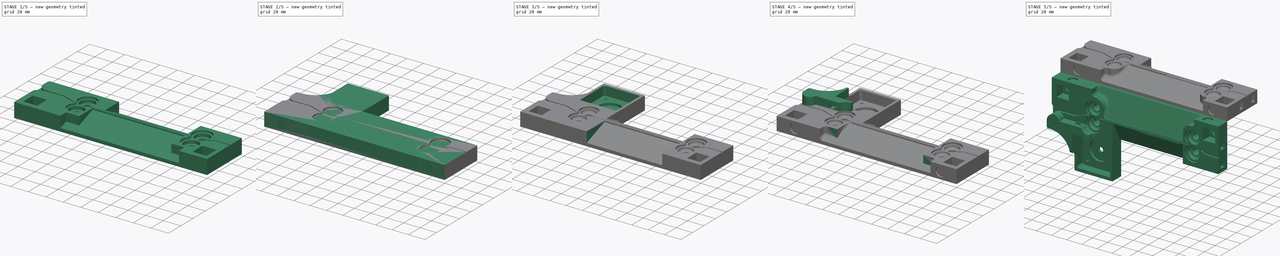
[diagram: build sequence overview — one tinted view per stage of 5, left to right]
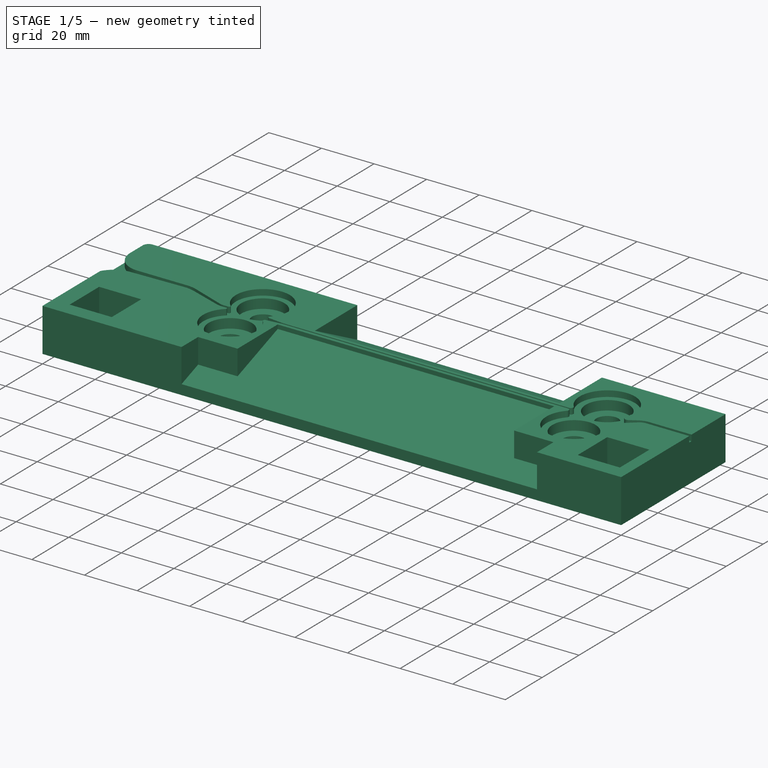
[diagram: stage 1 of 5 — iso view after this stage's code; geometry added in this stage tinted green]
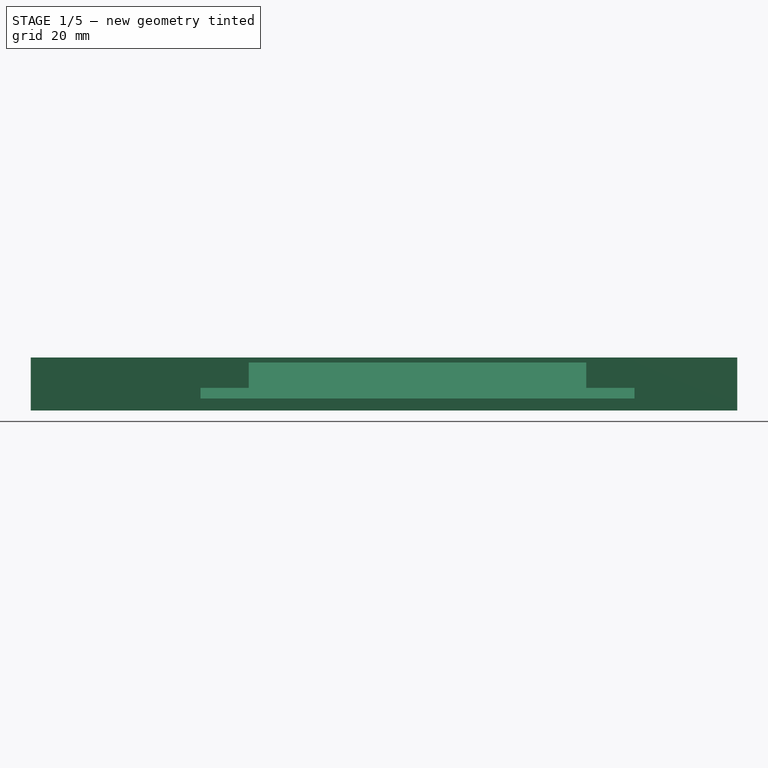
[diagram: stage 1 of 5 — front view after this stage's code; geometry added in this stage tinted green]
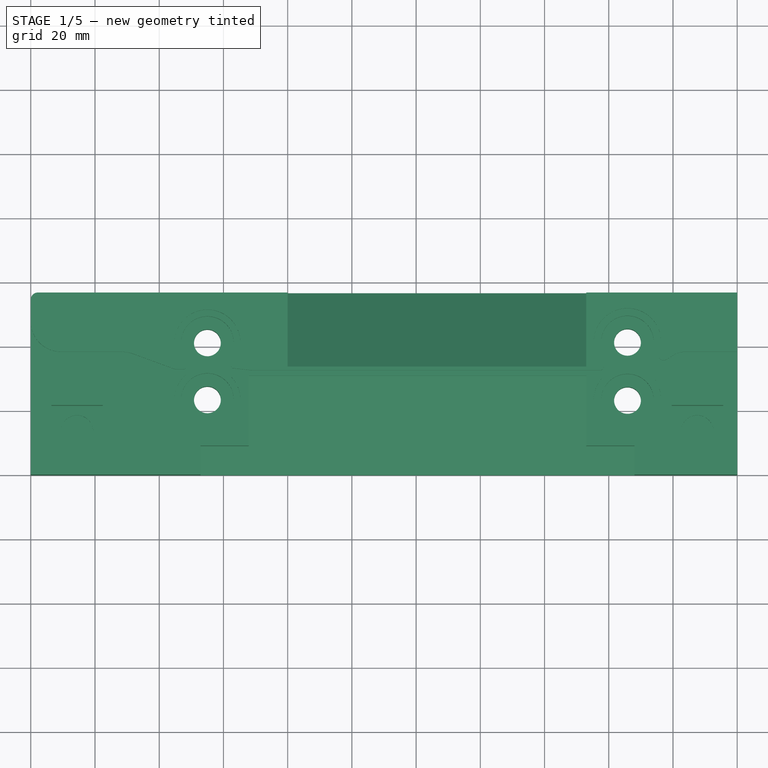
[diagram: stage 1 of 5 — top view after this stage's code; geometry added in this stage tinted green]
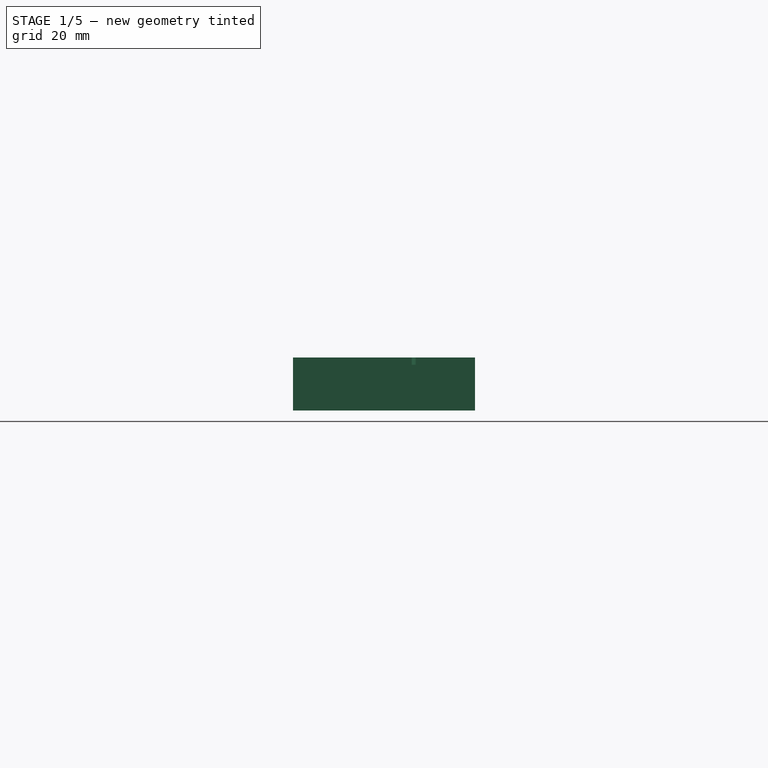
[diagram: stage 1 of 5 — right view after this stage's code; geometry added in this stage tinted green]
FCSTD DOCUMENT  (FreeCAD 0.19R22670 (Git))
Label: DuckAfterDuck OPEN Film Carrier
License: All rights reserved
LicenseURL: http://en.wikipedia.org/wiki/All_rights_reserved
objects: Sketcher::SketchObject×38, PartDesign::Pocket×36, PartDesign::Fillet×13, PartDesign::Pad×3, Spreadsheet::Sheet×2, PartDesign::Body×2, Part::Part2DObjectPython×1, PartDesign::Chamfer×1, Part::Mirroring×1
note: 148 computed .brp shape members not serialized (recipe doc carries the construction recipe); baked Part::Feature solids carry a one-line shape summary decoded from their .brp

FEATURE [Sketcher::SketchObject] Sketch034  label="bottomangularcutB"
  AttachmentOffset = pos=(0,0,-52) rot=(0,0,1;0rad)
  MapMode = 5
  Placement = pos=(173,0,0) rot=(0.57735,0.57735,0.57735;2.0944rad)
  sketch-geometry (4):
    g0: LineSegment StartX=0 StartY=16.6409 StartZ=0 EndX=0 EndY=3.75 EndZ=0
    g1: LineSegment StartX=0 StartY=3.75 StartZ=0 EndX=30.8 EndY=14.9603 EndZ=0
    g2: LineSegment StartX=30.8 StartY=14.9603 StartZ=0 EndX=30.8 EndY=16.6409 EndZ=0
    g3: LineSegment StartX=30.8 StartY=16.6409 StartZ=0 EndX=0 EndY=16.6409 EndZ=0
  constraints (11):
    c: Vertical(g0)
    c: Coincident(g0,g1)
    c: Angle(g1,g0) = 1.22173
    c: Vertical(g-1,g0)
    c: Coincident(g1,g2)
    c: Vertical(g2)
    c: Coincident(g2,g3)
    c: Horizontal(g3)
    c: Coincident(g0,g3)
    c: DistanceY(g-1,g0) = 3.75
    c: DistanceX(g-1,g1) = 30.8
FEATURE [Sketcher::SketchObject] Sketch035  label="bottomangularcut4B"
  AttachmentOffset = pos=(0,0,81) rot=(0,0,1;0rad)
  MapMode = 5
  Placement = pos=(81,-1.8e-14,1.8e-14) rot=(0.57735,0.57735,0.57735;2.0944rad)
  Support = -> [YZ_Plane001]
  sketch-geometry (4):
    g0: LineSegment StartX=0 StartY=3.75 StartZ=0 EndX=0 EndY=17.2592 EndZ=0
    g1: LineSegment StartX=0 StartY=17.2592 StartZ=0 EndX=30.8 EndY=17.2592 EndZ=0
    g2: LineSegment StartX=30.8 StartY=17.2592 StartZ=0 EndX=30.8 EndY=14.9603 EndZ=0
    g3: LineSegment StartX=30.8 StartY=14.9603 StartZ=0 EndX=0 EndY=3.75 EndZ=0
  constraints (11):
    c: PointOnObject(g0,g-2)
    c: Coincident(g0,g1)
    c: Horizontal(g1)
    c: Coincident(g1,g2)
    c: Coincident(g2,g3)
    c: Coincident(g3,g0)
    c: Angle(g3,g0) = 1.22173
    c: PointOnObject(g0,g-2)
    c: Vertical(g1,g2)
    c: DistanceY(g-1,g0) = 3.75
    c: DistanceX(g0,g1) = 30.8
FEATURE [Spreadsheet::Sheet] Spreadsheet001
  cells = A2=main length; B2(mainlength)=220; A3=main width; B3(mainwidth)=16; A4=main height; B4(mainheight)=60; A6=first pocket Roller; B6(firstpocketRoller)=4; A7=first pocket Radius Roller; B7(firstpocketRadiusRoller)=10; A8=first pocke Spreding; B8(firstpockeSpreding)=17.25; A9=Second pocket Roller; B9(SecondpocketRoller)=3.6; A10=Second pocet Radius Roller; B10(SecondpocetRadiusRoller)=8.199999999999999; A11=film pocket ; B11(filmpocket)=1.75; A12=film height ; B12(filmheight)=0.7; A13=film length; B13(filmLength)=100; A15=general fillet ; B15(generalFillet)=1
FEATURE [Sketcher::SketchObject] Sketch036  label="bottomangularcut2B"
  MapMode = 5
  Placement = pos=(173,0,0) rot=(0.57735,-0.57735,-0.57735;2.0944rad)
  sketch-geometry (4):
    g0: LineSegment StartX=-9 StartY=16.5841 StartZ=0 EndX=0 EndY=16.5841 EndZ=0
    g1: LineSegment StartX=0 StartY=16.5841 StartZ=0 EndX=0 EndY=3.75 EndZ=0
    g2: LineSegment StartX=0 StartY=3.75 StartZ=0 EndX=-9 EndY=7.02573 EndZ=0
    g3: LineSegment StartX=-9 StartY=7.02573 StartZ=0 EndX=-9 EndY=16.5841 EndZ=0
  constraints (11):
    c: Coincident(g0,g1)
    c: Coincident(g1,g2)
    c: Coincident(g2,g3)
    c: Vertical(g3)
    c: Coincident(g3,g0)
    c: Horizontal(g0,g0)
    c: Angle(g1,g2) = 1.22173
    c: Vertical(g-1,g1)
    c: Vertical(g1,g0)
    c: Distance(g-1,g1) = 3.75
    c: DistanceX(g0,g0) = 9
FEATURE [Sketcher::SketchObject] Sketch038  label="2ndhole4rollerB"
  AttachmentOffset = pos=(0,0,-1.75) rot=(0,0,1;0rad)
  MapMode = 5
  Placement = pos=(0,0,14.25) rot=(0,0,1;0rad)
  expr: Constraints[1] = Spreadsheet001.SecondpocetRadiusRoller
  expr: Constraints[0] = Spreadsheet001.SecondpocetRadiusRoller
  expr: Constraints[2] = Spreadsheet001.SecondpocetRadiusRoller
  sketch-geometry (4):
    g0: Circle CenterX=185.83 CenterY=41.3 CenterZ=0 NormalX=0 NormalY=0 NormalZ=1 AngleXU=0 Radius=8.2
    g1: Circle CenterX=55 CenterY=23.38 CenterZ=0 NormalX=0 NormalY=0 NormalZ=1 AngleXU=0 Radius=8.2
    g2: Circle CenterX=55 CenterY=41.13 CenterZ=0 NormalX=0 NormalY=0 NormalZ=1 AngleXU=0 Radius=8.2
    g3: Circle CenterX=185.83 CenterY=23.2 CenterZ=0 NormalX=0 NormalY=0 NormalZ=1 AngleXU=0 Radius=8.2
  constraints (12):
    c: Radius(g0) = 8.2
    c: Radius(g2) = 8.2
    c: Radius(g1) = 8.2
    c: Radius(g3) = 8.2
    c: Vertical(g1,g2)
    c: Distance(g1,g2) = 17.75
    c: Distance(g3,g0) = 18.1
    c: DistanceY(g-1,g2) = 41.13
    c: Distance(g2,g0) = 130.83
    c: Vertical(g3,g0)
    c: DistanceY(g-1,g0) = 41.3
    c: DistanceX(g-1,g2) = 55
FEATURE [Sketcher::SketchObject] Sketch039  label="3rdhole4rollerB"
  MapMode = 5
  Placement = pos=(0,0,10.65) rot=(0,0,1;0rad)
  sketch-geometry (4):
    g0: Circle CenterX=55 CenterY=41.13 CenterZ=0 NormalX=0 NormalY=0 NormalZ=1 AngleXU=0 Radius=4.18
    g1: Circle CenterX=55 CenterY=23.38 CenterZ=0 NormalX=0 NormalY=0 NormalZ=1 AngleXU=0 Radius=4.18
    g2: Circle CenterX=185.83 CenterY=41.3 CenterZ=0 NormalX=0 NormalY=0 NormalZ=1 AngleXU=0 Radius=4.18
    g3: Circle CenterX=185.83 CenterY=23.2 CenterZ=0 NormalX=0 NormalY=0 NormalZ=1 AngleXU=0 Radius=4.18
  constraints (12):
    c: Radius(g3) = 4.18
    c: Radius(g2) = 4.18
    c: Radius(g0) = 4.18
    c: Radius(g1) = 4.18
    c: Vertical(g1,g0)
    c: Vertical(g3,g2)
    c: DistanceX(g1) = 55
    c: DistanceY(g0) = 41.13
    c: DistanceY(g1,g0) = 17.75
    c: DistanceY(g3,g2) = 18.1
    c: Distance(g2,g0) = 130.83
    c: DistanceY(g-1,g2) = 41.3
FEATURE [Sketcher::SketchObject] Sketch040  label="topangularcutB"
  AttachmentOffset = pos=(0,0,-52) rot=(0,0,1;0rad)
  MapMode = 5
  Placement = pos=(173,0,0) rot=(0.57735,0.57735,0.57735;2.0944rad)
  sketch-geometry (4):
    g0: LineSegment StartX=60 StartY=2.87191 StartZ=0 EndX=60.0146 EndY=16.5007 EndZ=0
    g1: LineSegment StartX=60.0146 StartY=16.5007 StartZ=0 EndX=33.1057 EndY=17.0469 EndZ=0
    g2: LineSegment StartX=33.1057 StartY=16.7896 StartZ=0 EndX=33.1057 EndY=17.0469 EndZ=0
    g3: LineSegment StartX=60 StartY=2.87191 StartZ=0 EndX=33.1057 EndY=16.7896 EndZ=0
  constraints (10):
    c: Coincident(g0,g1)
    c: DistanceX(g0) = 60.0146
    c: DistanceY(g0) = 16.5007
    c: DistanceX(g0) = 60
    c: DistanceY(g0) = 2.87191
    c: Vertical(g2)
    c: Coincident(g1,g2)
    c: Coincident(g3,g0)
    c: Coincident(g3,g2)
    c: Angle(g0,g3) = 1.09432
FEATURE [Sketcher::SketchObject] Sketch041  label="spacerpockerB"
  MapMode = 5
  Placement = pos=(0,0,16.5) rot=(0,0,1;0rad)
  sketch-geometry (8):
    g0: LineSegment StartX=6.41 StartY=5.63 StartZ=0 EndX=22.41 EndY=5.63 EndZ=0
    g1: LineSegment StartX=22.41 StartY=5.63 StartZ=0 EndX=22.41 EndY=21.63 EndZ=0
    g2: LineSegment StartX=22.41 StartY=21.63 StartZ=0 EndX=6.41 EndY=21.63 EndZ=0
    g3: LineSegment StartX=6.41 StartY=21.63 StartZ=0 EndX=6.41 EndY=5.63 EndZ=0
    g4: LineSegment StartX=199.57 StartY=5.58 StartZ=0 EndX=215.62 EndY=5.58 EndZ=0
    g5: LineSegment StartX=215.62 StartY=5.58 StartZ=0 EndX=215.62 EndY=21.63 EndZ=0
    g6: LineSegment StartX=215.62 StartY=21.63 StartZ=0 EndX=199.57 EndY=21.63 EndZ=0
    g7: LineSegment StartX=199.57 StartY=21.63 StartZ=0 EndX=199.57 EndY=5.58 EndZ=0
  constraints (24):
    c: Coincident(g0,g1)
    c: Coincident(g1,g2)
    c: Coincident(g2,g3)
    c: Coincident(g3,g0)
    c: Horizontal(g0)
    c: Horizontal(g2)
    c: Vertical(g1)
    c: Vertical(g3)
    c: Coincident(g4,g5)
    c: Coincident(g5,g6)
    c: Coincident(g6,g7)
    c: Coincident(g7,g4)
    c: Horizontal(g4)
    c: Horizontal(g6)
    c: Vertical(g5)
    c: Vertical(g7)
    c: DistanceX(g2,g2) = 16
    c: DistanceX(g6,g6) = 16.05
    c: Equal(g2,g1)
    c: Equal(g6,g7)
    c: Horizontal(g6,g1)
    c: DistanceX(g6) = 199.57
    c: DistanceX(g2) = 6.41
    c: DistanceY(g2) = 21.63
FEATURE [Sketcher::SketchObject] Sketch042  label="rubbergrippocketB"
  MapMode = 5
  Placement = pos=(0,0,0) rot=(1,0,0;1.5708rad)
  Support = -> [XZ_Plane001]
  sketch-geometry (2):
    g0: Circle CenterX=22 CenterY=8.25 CenterZ=0 NormalX=0 NormalY=0 NormalZ=1 AngleXU=0 Radius=5.7
    g1: Circle CenterX=200 CenterY=8.25 CenterZ=0 NormalX=0 NormalY=0 NormalZ=1 AngleXU=0 Radius=5.7
  constraints (6):
    c: Radius(g0) = 5.7
    c: DistanceX(g-1,g0) = 22
    c: DistanceY(g-1,g0) = 8.25
    c: Radius(g1) = 5.7
    c: DistanceX(g-1,g1) = 200
    c: DistanceY(g-1,g1) = 8.25
FEATURE [Sketcher::SketchObject] Sketch043  label="bottomangulacut3B"
  AttachmentOffset = pos=(0,0,67.87) rot=(0,0,1;0rad)
  MapMode = 5
  Placement = pos=(67.87,-1.51e-14,1.51e-14) rot=(0.57735,0.57735,0.57735;2.0944rad)
  Support = -> [YZ_Plane001]
  expr: .AttachmentOffset.Base.z = 71 - 3.13
  sketch-geometry (4):
    g0: LineSegment StartX=0 StartY=3.75 StartZ=0 EndX=0 EndY=16.7175 EndZ=0
    g1: LineSegment StartX=0 StartY=16.7175 StartZ=0 EndX=9 EndY=16.7175 EndZ=0
    g2: LineSegment StartX=9 StartY=16.7175 StartZ=0 EndX=9 EndY=7.02573 EndZ=0
    g3: LineSegment StartX=9 StartY=7.02573 StartZ=0 EndX=0 EndY=3.75 EndZ=0
  constraints (11):
    c: Coincident(g0,g1)
    c: Coincident(g1,g2)
    c: Coincident(g2,g3)
    c: Coincident(g3,g0)
    c: Angle(g3,g0) = 1.22173
    c: Horizontal(g1,g0)
    c: PointOnObject(g0,g-2)
    c: PointOnObject(g0,g-2)
    c: Parallel(g0,g2)
    c: Distance(g-1,g0) = 3.75
    c: DistanceX(g1,g1) = 9
FEATURE [Sketcher::SketchObject] Sketch044  label="magnetpocketB"
  AttachmentOffset = pos=(0,0,4.5) rot=(0,0,1;0rad)
  MapMode = 5
  Placement = pos=(0,0,4.5) rot=(0,0,1;0rad)
  Support = -> [XY_Plane001]
  sketch-geometry (2):
    g0: Circle CenterX=14.4086 CenterY=13.6322 CenterZ=0 NormalX=0 NormalY=0 NormalZ=1 AngleXU=0 Radius=5.05
    g1: Circle CenterX=207.57 CenterY=13.6322 CenterZ=0 NormalX=0 NormalY=0 NormalZ=1 AngleXU=0 Radius=5.05
  constraints (3):
    c: Radius(g0) = 5.05
    c: Radius(g1) = 5.05
    c: DistanceX(g1) = 207.57
FEATURE [Sketcher::SketchObject] Sketch045  label="filmcollectorpocketB"
  AttachmentOffset = pos=(0,0,220) rot=(0,0,1;0rad)
  MapMode = 5
  Placement = pos=(220,-4.88e-14,4.88e-14) rot=(0.57735,0.57735,0.57735;2.0944rad)
  Support = -> [YZ_Plane001]
  sketch-geometry (8):
    g0: LineSegment StartX=24.15 StartY=12.25 StartZ=0 EndX=30.15 EndY=12.25 EndZ=0
    g1: LineSegment StartX=30.15 StartY=4.25 StartZ=0 EndX=24.15 EndY=4.25 EndZ=0
    g2: LineSegment StartX=24.15 StartY=12.25 StartZ=0 EndX=24.15 EndY=4.25 EndZ=0
    g3: LineSegment StartX=30.15 StartY=4.25 StartZ=0 EndX=30.15 EndY=12.25 EndZ=0
    g4: LineSegment StartX=46.25 StartY=12.25 StartZ=0 EndX=52.25 EndY=12.25 EndZ=0
    g5: LineSegment StartX=52.25 StartY=12.25 StartZ=0 EndX=52.25 EndY=4.25 EndZ=0
    g6: LineSegment StartX=52.25 StartY=4.25 StartZ=0 EndX=46.25 EndY=4.25 EndZ=0
    g7: LineSegment StartX=46.25 StartY=4.25 StartZ=0 EndX=46.25 EndY=12.25 EndZ=0
  constraints (23):
    c: Horizontal(g0)
    c: Horizontal(g1)
    c: Coincident(g2,g0)
    c: Coincident(g2,g1)
    c: Vertical(g2)
    c: Coincident(g3,g1)
    c: Coincident(g3,g0)
    c: Vertical(g3)
    c: DistanceY(g3,g3) = 8
    c: DistanceX(g0,g0) = 6
    c: Horizontal(g4)
    c: Coincident(g4,g5)
    c: Vertical(g5)
    c: Coincident(g5,g6)
    c: Horizontal(g6)
    c: Coincident(g6,g7)
    c: Coincident(g7,g4)
    c: Vertical(g7)
    c: DistanceY(g5,g5) = 8
    c: DistanceX(g6,g6) = 6
    c: DistanceX(g1,g6) = 16.1
    c: Horizontal(g4,g0)
    c: DistanceX(g1) = 24.15
FEATURE [Sketcher::SketchObject] Sketch047  label="mainshapeB"
  MapMode = 2
  sketch-geometry (6):
    g0: LineSegment StartX=0 StartY=0 StartZ=0 EndX=220 EndY=0 EndZ=0
    g1: LineSegment StartX=220 StartY=0 StartZ=0 EndX=220 EndY=56.69 EndZ=0
    g2: LineSegment StartX=220 StartY=56.69 StartZ=0 EndX=2.31 EndY=56.69 EndZ=0
    g3: LineSegment StartX=0 StartY=54.5488 StartZ=0 EndX=0 EndY=0 EndZ=0
    g4: GeomPoint X=2.31 Y=56.69 Z=0
    g5: ArcOfCircle CenterX=2.14733 CenterY=54.5488 CenterZ=0 NormalX=0 NormalY=0 NormalZ=1 AngleXU=0 Radius=2.14733 StartAngle=1.49497 EndAngle=3.14159
  constraints (13):
    c: Coincident(g0,g1)
    c: Coincident(g1,g2)
    c: Coincident(g3,g0)
    c: Horizontal(g0)
    c: Horizontal(g2)
    c: Vertical(g1)
    c: Vertical(g3)
    c: Coincident(g0,g-1)
    c: Coincident(g4,g2)
    c: Tangent(g3,g5) = -1.5708
    c: DistanceY(g1,g1) = 56.69
    c: DistanceX(g5) = 2.31
    c: Coincident(g2,g5)
FEATURE [PartDesign::Pad] Pad002  label="MainShapeB"
  Direction = (1,1,1)
  Length = 16.5
  Length2 = 100
  Profile = -> Sketch047
  Refine = true
  Type = 0
FEATURE [Sketcher::SketchObject] Sketch037  label="maindesignB"
  AttachmentOffset = pos=(0,0,16.5) rot=(0,0,1;0rad)
  ExternalGeometry = -> [Sketch047,Sketch034]
  MapMode = 2
  Placement = pos=(0,0,16.5) rot=(0,0,1;0rad)
  sketch-geometry (52):
    g0: ArcOfCircle CenterX=55 CenterY=41.125 CenterZ=0 NormalX=0 NormalY=0 NormalZ=1 AngleXU=0 Radius=10.25 StartAngle=5.5358 EndAngle=10.2469
    g1: LineSegment StartX=68.6739 StartY=32.5 StartZ=0 EndX=171.792 EndY=32.5 EndZ=0
    g2: ArcOfCircle CenterX=185.83 CenterY=41.3 CenterZ=0 NormalX=0 NormalY=0 NormalZ=1 AngleXU=0 Radius=10.5 StartAngle=5.92098 EndAngle=10.1702
    g3: ArcOfCircle CenterX=185.83 CenterY=23.2 CenterZ=0 NormalX=0 NormalY=0 NormalZ=1 AngleXU=0 Radius=10.5 StartAngle=2.3962 EndAngle=6.79151
    g4: LineSegment StartX=171.792 StartY=32 StartZ=0 EndX=177.379 EndY=32 EndZ=0
    g5: LineSegment StartX=171.792 StartY=32.5 StartZ=0 EndX=177.379 EndY=32.5 EndZ=0
    g6: LineSegment StartX=203.83 StartY=37 StartZ=0 EndX=220 EndY=37 EndZ=0
    g7: LineSegment StartX=203.83 StartY=38.25 StartZ=0 EndX=220 EndY=38.25 EndZ=0
    g8: LineSegment StartX=220 StartY=38.25 StartZ=0 EndX=220 EndY=37 EndZ=0
    g9: ArcOfCircle CenterX=177.379 CenterY=33.5 CenterZ=0 NormalX=0 NormalY=0 NormalZ=1 AngleXU=0 Radius=1 StartAngle=4.71239 EndAngle=7.02858
    g10: ArcOfCircle CenterX=177.379 CenterY=31 CenterZ=0 NormalX=0 NormalY=0 NormalZ=1 AngleXU=0 Radius=1 StartAngle=5.53779 EndAngle=7.85398
    g11: ArcOfCircle CenterX=55 CenterY=23.375 CenterZ=0 NormalX=0 NormalY=0 NormalZ=1 AngleXU=0 Radius=10.25 StartAngle=2.31952 EndAngle=7.03057
    g12: LineSegment [constr] StartX=55 StartY=32.25 StartZ=0 EndX=55 EndY=23.375 EndZ=0
    g13: LineSegment [constr] StartX=55 StartY=32.25 StartZ=0 EndX=55 EndY=41.125 EndZ=0
    g14: GeomPoint X=185.83 Y=32.25 Z=0
    g15: LineSegment [constr] StartX=185.83 StartY=23.2 StartZ=0 EndX=185.83 EndY=32.25 EndZ=0
    g16: LineSegment [constr] StartX=185.83 StartY=32.25 StartZ=0 EndX=185.83 EndY=41.3 EndZ=0
    g17: ArcOfCircle CenterX=203.83 CenterY=31.3067 CenterZ=0 NormalX=0 NormalY=0 NormalZ=1 AngleXU=0 Radius=6.94331 StartAngle=1.5708 EndAngle=2.0944
    g18: ArcOfCircle CenterX=203.83 CenterY=32.5567 CenterZ=0 NormalX=0 NormalY=0 NormalZ=1 AngleXU=0 Radius=4.44331 StartAngle=1.5708 EndAngle=2.0944
    g19: LineSegment StartX=200.358 StartY=37.3198 StartZ=0 EndX=197.837 EndY=35.77 EndZ=0
    g20: ArcOfCircle CenterX=197.212 CenterY=29.5419 CenterZ=0 NormalX=0 NormalY=0 NormalZ=1 AngleXU=0 Radius=2.53 StartAngle=2.10454 EndAngle=3.64992
    g21: LineSegment [constr] StartX=177.379 StartY=32 StartZ=0 EndX=177.379 EndY=29.7 EndZ=0
    g22: LineSegment [constr] StartX=177.379 StartY=32.5 StartZ=0 EndX=177.379 EndY=29.7 EndZ=0
    g23: ArcOfCircle CenterX=197.051 CenterY=37.0479 CenterZ=0 NormalX=0 NormalY=0 NormalZ=1 AngleXU=0 Radius=1.5 StartAngle=2.77938 EndAngle=5.26349
    g24: LineSegment StartX=195.925 StartY=31.72 StartZ=0 EndX=201.608 EndY=36.4047 EndZ=0
    g25: LineSegment StartX=171.792 StartY=32 StartZ=0 EndX=68.6739 EndY=32 EndZ=0
    g26: LineSegment StartX=68.6739 StartY=32.5 StartZ=0 EndX=62.8907 EndY=33.1538 EndZ=0
    g27: LineSegment StartX=28 StartY=38.25 StartZ=0 EndX=9.40054 EndY=38.25 EndZ=0
    g28: LineSegment StartX=28 StartY=36.75 StartZ=0 EndX=7.19775 EndY=36.2053 EndZ=0
    g29: LineSegment [constr] StartX=195.925 StartY=31.72 StartZ=0 EndX=195.925 EndY=31.72 EndZ=0
    g30: LineSegment [constr] StartX=45.155 StartY=31.72 StartZ=0 EndX=34.3066 EndY=31.72 EndZ=0
    g31: ArcOfCircle CenterX=62.9581 CenterY=30.75 CenterZ=0 NormalX=0 NormalY=0 NormalZ=1 AngleXU=0 Radius=0.6 StartAngle=1.78233 EndAngle=3.88898
    g32: ArcOfCircle CenterX=62.9581 CenterY=33.75 CenterZ=0 NormalX=0 NormalY=0 NormalZ=1 AngleXU=0 Radius=0.6 StartAngle=2.39421 EndAngle=4.59981
    g33: ArcOfCircle CenterX=9.44539 CenterY=47.6974 CenterZ=0 NormalX=0 NormalY=0 NormalZ=1 AngleXU=0 Radius=9.44752 StartAngle=3.12038 EndAngle=4.70764
    g34: LineSegment [constr] StartX=7.19775 StartY=36.2053 StartZ=0 EndX=20.8786 EndY=36.2053 EndZ=0
    g35: ArcOfCircle CenterX=8.40252 CenterY=26.6562 CenterZ=0 NormalX=0 NormalY=0 NormalZ=1 AngleXU=0 Radius=9.62476 StartAngle=1.6963 EndAngle=2.63214
    g36: LineSegment StartX=0 StartY=47.8978 StartZ=0 EndX=0 EndY=31.3502 EndZ=0
    g37: GeomPoint X=173 Y=23.2641 Z=0
    g38: GeomPoint X=175.33 Y=23.2443 Z=0
    g39: GeomPoint X=65.2397 Y=22.9153 Z=0
    g40: GeomPoint X=71.1027 Y=22.8947 Z=0
    g41: LineSegment StartX=47.6824 StartY=31.75 StartZ=0 EndX=46.3137 EndY=31.75 EndZ=0
    g42: LineSegment StartX=47.6824 StartY=32.75 StartZ=0 EndX=46.0668 EndY=32.75 EndZ=0
    g43: LineSegment StartX=44.2344 StartY=33.0759 StartZ=0 EndX=32.1675 EndY=37.5088 EndZ=0
    g44: ArcOfCircle CenterX=47.6824 CenterY=33.25 CenterZ=0 NormalX=0 NormalY=0 NormalZ=1 AngleXU=0 Radius=0.5 StartAngle=4.71239 EndAngle=7.10526
    g45: ArcOfCircle CenterX=47.6824 CenterY=31.25 CenterZ=0 NormalX=0 NormalY=0 NormalZ=1 AngleXU=0 Radius=0.5 StartAngle=5.46111 EndAngle=7.85398
    g46: LineSegment StartX=43.5102 StartY=32.2191 StartZ=0 EndX=32.2526 EndY=36.0955 EndZ=0
    g47: ArcOfCircle CenterX=46.0668 CenterY=38.064 CenterZ=0 NormalX=0 NormalY=0 NormalZ=1 AngleXU=0 Radius=5.31405 StartAngle=4.36034 EndAngle=4.71239
    g48: ArcOfCircle CenterX=46.3137 CenterY=40.361 CenterZ=0 NormalX=0 NormalY=0 NormalZ=1 AngleXU=0 Radius=8.61099 StartAngle=4.38078 EndAngle=4.71239
    g49: ArcOfCircle CenterX=28.3165 CenterY=24.6642 CenterZ=0 NormalX=0 NormalY=0 NormalZ=1 AngleXU=0 Radius=12.0899 StartAngle=1.23918 EndAngle=1.59698
    g50: ArcOfCircle CenterX=28 CenterY=26.1642 CenterZ=0 NormalX=0 NormalY=0 NormalZ=1 AngleXU=0 Radius=12.0858 StartAngle=1.21875 EndAngle=1.5708
    g51: LineSegment StartX=62.8322 StartY=31.3366 StartZ=0 EndX=68.6739 EndY=32 EndZ=0
  constraints (119):
    c: Radius(g0) = 10.25
    c: Horizontal(g1)
    c: Vertical(g4,g1)
    c: Distance(g4,g1) = 0.5
    c: Radius(g2) = 10.5
    c: Radius(g3) = 10.5
    c: Distance(g3,g2) = 18.1
    c: Vertical(g2,g3)
    c: Horizontal(g4)
    c: Horizontal(g5)
    c: Coincident(g1,g5)
    c: Horizontal(g6)
    c: Horizontal(g7)
    c: Coincident(g8,g6)
    c: Coincident(g8,g7)
    c: Tangent(g5,g9) = -1.5708
    c: Tangent(g2,g9) = 1.5708
    c: Radius(g9) = 1
    c: Tangent(g4,g10) = 1.5708
    c: Tangent(g3,g10) = 1.5708
    c: Radius(g10) = 1
    c: Distance(g0,g2) = 130.83
    c: Radius(g11) = 10.25
    c: Vertical(g11,g0)
    c: DistanceY(g11,g0) = 17.75
    c: Vertical(g6,g7)
    c: Vertical(g12)
    c: Coincident(g13,g0)
    c: Coincident(g12,g11)
    c: Coincident(g15,g3)
    c: Coincident(g15,g14)
    c: Vertical(g15)
    c: Coincident(g16,g14)
    c: Coincident(g16,g2)
    c: Equal(g15,g16)
    c: DistanceX(g-1,g6) = 220
    c: DistanceY(g6,g7) = 1.25
    c: Tangent(g7,g17) = 1.5708
    c: Tangent(g6,g18) = 1.5708
    c: Distance(g17,g18) = 1.25
    c: Angle(g17) = 0.523599
    c: Angle(g18) = 0.523599
    c: Coincident(g19,g17)
    c: Tangent(g3,g20) = 1.5708
    c: DistanceY(g4,g6) = 5
    c: Coincident(g21,g4)
    c: Vertical(g21)
    c: Coincident(g22,g5)
    c: Coincident(g22,g21)
    c: Vertical(g22)
    c: Tangent(g2,g23) = 1.5708
    c: Tangent(g19,g23) = 1.5708
    c: Coincident(g24,g20)
    c: Coincident(g24,g18)
    c: DistanceY(g19,g2) = 5.53
    c: DistanceY(g20,g19) = 4.05
    c: Coincident(g25,g4)
    c: Horizontal(g25)
    c: DistanceY(g25) = 32
    c: Coincident(g12,g13)
    c: Equal(g12,g13)
    c: Horizontal(g14,g12)
    c: DistanceX(g12) = 55
    c: Coincident(g26,g1)
    c: Vertical(g25,g1)
    c: Radius(g20) = 2.53
    c: Radius(g23) = 1.5
    c: Horizontal(g27)
    c: Vertical(g17,g18)
    c: DistanceX(g2,g7) = 18
    c: Coincident(g29,g20)
    c: Horizontal(g29)
    c: Angle(g29,g24) = 0.689405
    c: Horizontal(g30)
    c: Vertical(g28,g27)
    c: Tangent(g11,g31) = 1.5708
    c: Tangent(g26,g32) = 1.5708
    c: Tangent(g0,g32) = 1.5708
    c: Coincident(g33,g27)
    c: PointOnObject(g33,g-4)
    c: Coincident(g34,g28)
    c: Horizontal(g34)
    c: Angle(g34,g28) = 0.0261799
    c: Coincident(g35,g28)
    c: PointOnObject(g35,g-4)
    c: Coincident(g36,g33)
    c: Coincident(g36,g35)
    c: PointOnObject(g37,g-5)
    c: PointOnObject(g38,g3)
    c: PointOnObject(g39,g11)
    c: Radius(g31) = 0.6
    c: Radius(g32) = 0.6
    c: Vertical(g31,g32)
    c: Horizontal(g41)
    c: Horizontal(g42)
    c: Tangent(g42,g44) = 1.5708
    c: Tangent(g0,g44) = 1.5708
    c: Radius(g44) = 0.5
    c: Tangent(g41,g45) = -1.5708
    c: Tangent(g11,g45) = 1.5708
    c: Radius(g45) = 0.5
    c: Vertical(g45,g44)
    c: DistanceY(g45,g44) = 2
    c: Tangent(g42,g47) = 1.5708
    c: Tangent(g43,g47) = 1.5708
    c: Tangent(g41,g48) = 1.5708
    c: Tangent(g46,g48) = 1.5708
    c: Tangent(g46,g49) = -1.5708
    c: Tangent(g28,g49) = -1.5708
    c: Tangent(g27,g50) = -1.5708
    c: Tangent(g43,g50) = -1.5708
    c: DistanceY(g49,g50) = 1.5
    c: DistanceX(g50,g0) = 27
    c: Horizontal(g27,g7)
    c: DistanceY(g28,g27) = 1.5
    c: Angle(g46,g30) = 0.331613
    c: Coincident(g51,g31)
    c: Coincident(g51,g25)
    c: DistanceY(g31,g32) = 3
FEATURE [PartDesign::Pocket] Pocket034  label="MainDesignB"
  BaseFeature = -> Pad002
  Length = 2.25
  Length2 = 100
  Profile = -> Sketch037
  Refine = true
  Type = 0
FEATURE [PartDesign::Pocket] Pocket035  label="2ndHole4rollerB"
  BaseFeature = -> Pocket034
  Length = 3.6
  Length2 = 100
  Profile = -> Sketch038
  Refine = true
  Type = 0
FEATURE [PartDesign::Pocket] Pocket036  label="SpacerPocketB"
  BaseFeature = -> Pocket035
  Length = 12
  Length2 = 100
  Profile = -> Sketch041
  Refine = true
  Type = 0
FEATURE [PartDesign::Pocket] Pocket037  label="3rdHole4rollerB"
  BaseFeature = -> Pocket036
  Length = 5
  Length2 = 100
  Profile = -> Sketch039
  Refine = true
  Type = 1
FEATURE [PartDesign::Pocket] Pocket028  label="BottomAngularCutB"
  BaseFeature = -> Pocket037
  Length = 92
  Length2 = 100
  Profile = -> Sketch034
  Refine = true
  Type = 0
FEATURE [PartDesign::Pocket] Pocket029  label="TopAngularCutB"
  BaseFeature = -> Pocket028
  Length = 93
  Length2 = 100
  Profile = -> Sketch040
  Refine = true
  Type = 0
FEATURE [PartDesign::Pocket] Pocket030  label="BottomAngulaCut2B"
  BaseFeature = -> Pocket029
  Length = 15
  Length2 = 100
  Profile = -> Sketch036
  Refine = true
  Type = 0
FEATURE [PartDesign::Pocket] Pocket031  label="BottomAngularCut3B"
  BaseFeature = -> Pocket030
  Length = 15
  Length2 = 100
  Profile = -> Sketch043
  Refine = true
  Type = 0
FEATURE [PartDesign::Pocket] Pocket033  label="MagnetPocketB"
  BaseFeature = -> Pocket031
  Length = 2.2
  Length2 = 100
  Profile = -> Sketch044
  Refine = true
  Type = 0
FEATURE [PartDesign::Pocket] Pocket038  label="BottomAngularCut4B"
  BaseFeature = -> Pocket033
  Length = 13.13
  Length2 = 100
  Profile = -> Sketch035
  Refine = true
  Type = 0
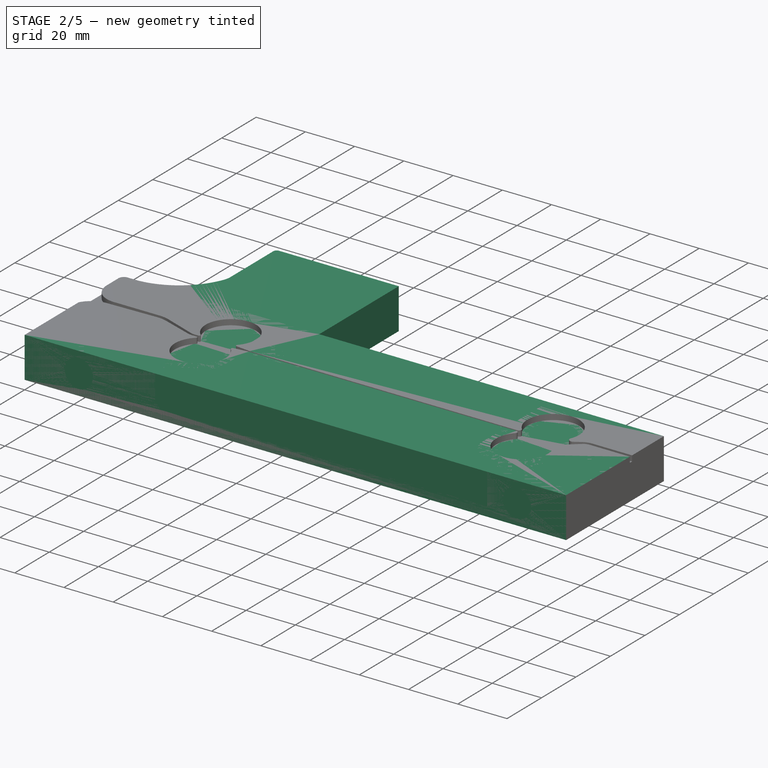
[diagram: stage 2 of 5 — iso view after this stage's code; geometry added in this stage tinted green]
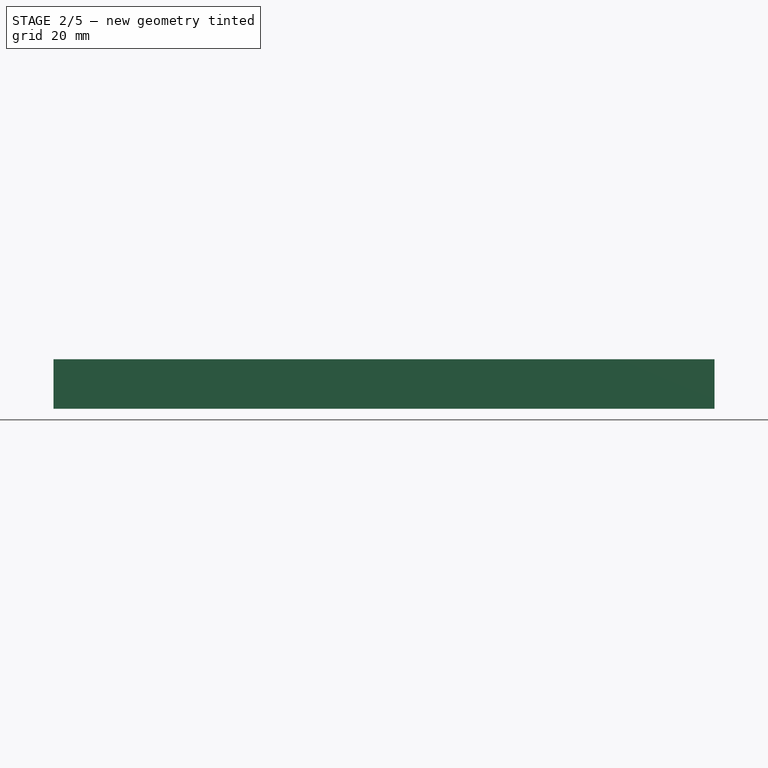
[diagram: stage 2 of 5 — front view after this stage's code; geometry added in this stage tinted green]
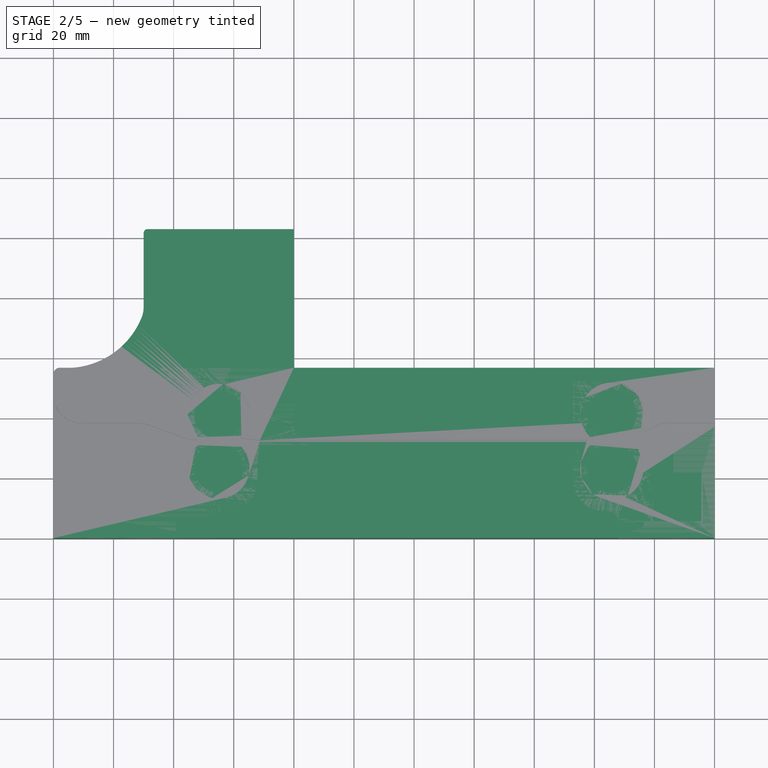
[diagram: stage 2 of 5 — top view after this stage's code; geometry added in this stage tinted green]
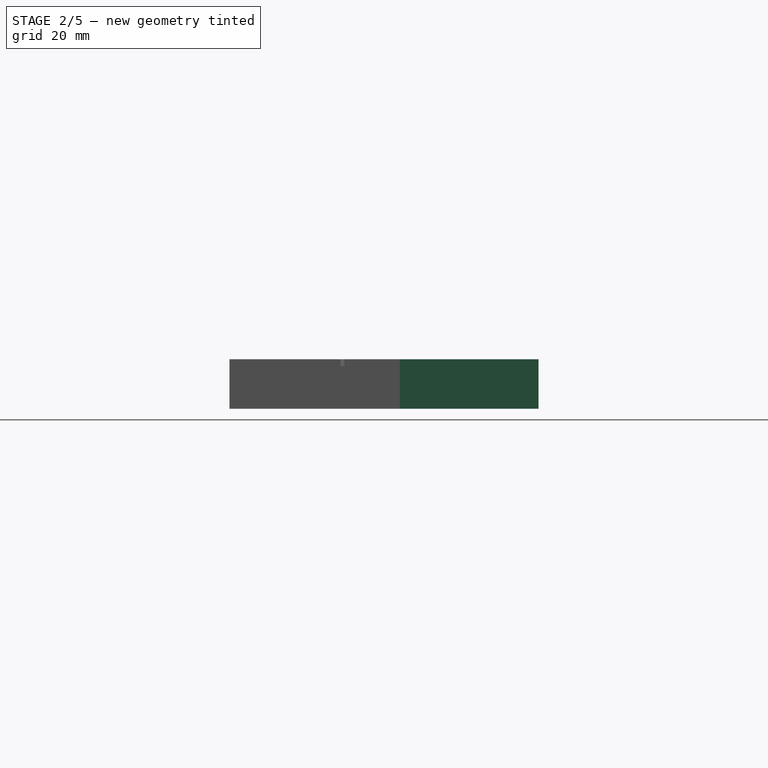
[diagram: stage 2 of 5 — right view after this stage's code; geometry added in this stage tinted green]
FEATURE [Sketcher::SketchObject] Sketch013  label="bottomangluarcut"
  AttachmentOffset = pos=(0,0,-52) rot=(0,0,1;0rad)
  MapMode = 5
  Placement = pos=(173,0,0) rot=(0.57735,0.57735,0.57735;2.0944rad)
  sketch-geometry (4):
    g0: LineSegment StartX=0 StartY=16.6409 StartZ=0 EndX=0 EndY=3.75 EndZ=0
    g1: LineSegment StartX=0 StartY=3.75 StartZ=0 EndX=30.8 EndY=14.9603 EndZ=0
    g2: LineSegment StartX=30.8 StartY=14.9603 StartZ=0 EndX=30.8 EndY=16.6409 EndZ=0
    g3: LineSegment StartX=30.8 StartY=16.6409 StartZ=0 EndX=0 EndY=16.6409 EndZ=0
  constraints (11):
    c: Vertical(g0)
    c: Coincident(g0,g1)
    c: Angle(g1,g0) = 1.22173
    c: Vertical(g-1,g0)
    c: Coincident(g1,g2)
    c: Vertical(g2)
    c: Coincident(g2,g3)
    c: Horizontal(g3)
    c: Coincident(g0,g3)
    c: DistanceY(g-1,g0) = 3.75
    c: DistanceX(g-1,g1) = 30.8
FEATURE [Sketcher::SketchObject] Sketch009  label="motorcircularpocket"
  MapMode = 5
  Placement = pos=(0,0,5.5) rot=(0,0,1;0rad)
  sketch-geometry (3):
    g0: GeomPoint X=55 Y=76.93 Z=0
    g1: Circle CenterX=55 CenterY=76.93 CenterZ=0 NormalX=0 NormalY=0 NormalZ=1 AngleXU=0 Radius=13
    g2: GeomPoint X=55 Y=41.13 Z=0
  constraints (6):
    c: Coincident(g1,g0)
    c: Radius(g1) = 13
    c: DistanceY(g-1,g2) = 41.13
    c: DistanceX(g-1,g2) = 55
    c: Distance(g2,g0) = 35.8
    c: DistanceX(g-1,g0) = 55
FEATURE [Sketcher::SketchObject] Sketch011  label="motorbindinghole"
  MapMode = 5
  Placement = pos=(0,0,5.5) rot=(0,0,1;0rad)
  sketch-geometry (5):
    g0: Circle CenterX=39.5 CenterY=92.43 CenterZ=0 NormalX=0 NormalY=0 NormalZ=1 AngleXU=0 Radius=1.5
    g1: Circle CenterX=39.5 CenterY=61.43 CenterZ=0 NormalX=0 NormalY=0 NormalZ=1 AngleXU=0 Radius=1.5
    g2: Circle CenterX=70.5 CenterY=61.43 CenterZ=0 NormalX=0 NormalY=0 NormalZ=1 AngleXU=0 Radius=1.5
    g3: Circle CenterX=70.5 CenterY=92.43 CenterZ=0 NormalX=0 NormalY=0 NormalZ=1 AngleXU=0 Radius=1.5
    g4: GeomPoint X=55 Y=76.93 Z=0
  constraints (13):
    c: Radius(g1) = 1.5
    c: Radius(g2) = 1.5
    c: Radius(g3) = 1.5
    c: Radius(g0) = 1.5
    c: Distance(g1,g2) = 31
    c: Distance(g2,g3) = 31
    c: Vertical(g2,g3)
    c: Horizontal(g0,g3)
    c: DistanceY(g-1,g4) = 76.93
    c: DistanceX(g-1,g4) = 55
    c: Symmetric(g1,g3,g4)
    c: Horizontal(g2,g1)
    c: Vertical(g0,g1)
FEATURE [Sketcher::SketchObject] Sketch008  label="Motorsquarepocket"
  MapMode = 5
  Placement = pos=(0,0,16.5) rot=(0,0,1;0rad)
  sketch-geometry (6):
    g0: LineSegment StartX=77 StartY=98.93 StartZ=0 EndX=35.8103 EndY=98.93 EndZ=0
    g1: LineSegment StartX=33 StartY=96.1197 StartZ=0 EndX=33 EndY=54.93 EndZ=0
    g2: LineSegment StartX=33 StartY=54.93 StartZ=0 EndX=77 EndY=54.93 EndZ=0
    g3: LineSegment StartX=77 StartY=54.93 StartZ=0 EndX=77 EndY=98.93 EndZ=0
    g4: GeomPoint X=55 Y=76.93 Z=0
    g5: ArcOfCircle CenterX=35.8103 CenterY=96.1197 CenterZ=0 NormalX=0 NormalY=0 NormalZ=1 AngleXU=0 Radius=2.81025 StartAngle=1.5708 EndAngle=3.14159
  constraints (14):
    c: Coincident(g1,g2)
    c: Coincident(g2,g3)
    c: Coincident(g3,g0)
    c: Horizontal(g0)
    c: Horizontal(g2)
    c: Vertical(g1)
    c: Vertical(g3)
    c: DistanceY(g3,g3) = 44
    c: Symmetric(g1,g0,g4)
    c: DistanceY(g-1,g4) = 76.93
    c: DistanceX(g-1,g4) = 55
    c: Tangent(g1,g5) = -1.5708
    c: Tangent(g0,g5) = -1.5708
    c: Equal(g3,g2)
FEATURE [Sketcher::SketchObject] Sketch020  label="bottomangularcut4"
  AttachmentOffset = pos=(0,0,81) rot=(0,0,1;0rad)
  MapMode = 5
  Placement = pos=(81,-1.8e-14,1.8e-14) rot=(0.57735,0.57735,0.57735;2.0944rad)
  Support = -> [YZ_Plane]
  sketch-geometry (4):
    g0: LineSegment StartX=0 StartY=3.75 StartZ=0 EndX=0 EndY=17.2592 EndZ=0
    g1: LineSegment StartX=0 StartY=17.2592 StartZ=0 EndX=30.8 EndY=17.2592 EndZ=0
    g2: LineSegment StartX=30.8 StartY=17.2592 StartZ=0 EndX=30.8 EndY=14.9603 EndZ=0
    g3: LineSegment StartX=30.8 StartY=14.9603 StartZ=0 EndX=0 EndY=3.75 EndZ=0
  constraints (11):
    c: PointOnObject(g0,g-2)
    c: Coincident(g0,g1)
    c: Horizontal(g1)
    c: Coincident(g1,g2)
    c: Coincident(g2,g3)
    c: Coincident(g3,g0)
    c: Angle(g3,g0) = 1.22173
    c: PointOnObject(g0,g-2)
    c: Vertical(g1,g2)
    c: DistanceY(g-1,g0) = 3.75
    c: DistanceX(g0,g1) = 30.8
FEATURE [Sketcher::SketchObject] Sketch029  label="sensorbindinghole2"
  AttachmentOffset = pos=(5,0,-54.03) rot=(0,0,1;0rad)
  MapMode = 5
  Placement = pos=(5,54.03,1.2e-14) rot=(1,0,0;1.5708rad)
  Support = -> [XZ_Plane]
  expr: .AttachmentOffset.Base.z = -60 + 5.97
  sketch-geometry (1):
    g0: Circle CenterX=36 CenterY=20.9834 CenterZ=0 NormalX=0 NormalY=0 NormalZ=1 AngleXU=0 Radius=1.5293
FEATURE [Part::Part2DObjectPython] ShapeString  # Draft 2D object (typed FeaturePython)
  FontFile = <userpath>/Downloads/MYRIADPRO-SEMIBOLD.OTF
  Placement = pos=(177.6,57.03,6.8) rot=(1,0,0;1.5708rad)
  Size = 2.2
  String = DuckAfterDuck
  Tracking = 0
  expr: .Placement.Base.y = 60 - 2.97
FEATURE [Sketcher::SketchObject] Sketch  label="mainshape"
  MapMode = 2
  sketch-geometry (14):
    g0: LineSegment StartX=0 StartY=0 StartZ=0 EndX=220 EndY=0 EndZ=0
    g1: LineSegment StartX=220 StartY=0 StartZ=0 EndX=220 EndY=56.69 EndZ=0
    g2: LineSegment StartX=220 StartY=56.69 StartZ=0 EndX=80 EndY=56.69 EndZ=0
    g3: LineSegment StartX=0 StartY=54.5488 StartZ=0 EndX=0 EndY=0 EndZ=0
    g4: GeomPoint X=80 Y=56.69 Z=0
    g5: LineSegment StartX=30 StartY=76.83 StartZ=0 EndX=30 EndY=101.488 EndZ=0
    g6: LineSegment StartX=31.3419 StartY=102.83 StartZ=0 EndX=80 EndY=102.83 EndZ=0
    g7: LineSegment StartX=80 StartY=102.83 StartZ=0 EndX=80 EndY=56.69 EndZ=0
    g8: ArcOfCircle CenterX=31.3419 CenterY=101.488 CenterZ=0 NormalX=0 NormalY=0 NormalZ=1 AngleXU=0 Radius=1.3419 StartAngle=1.5708 EndAngle=3.14159
    g9: ArcOfCircle CenterX=4.36596 CenterY=83.5912 CenterZ=0 NormalX=0 NormalY=0 NormalZ=1 AngleXU=0 Radius=26.9796 StartAngle=4.63615 EndAngle=5.89029
    g10: ArcOfCircle CenterX=2.14739 CenterY=54.5488 CenterZ=0 NormalX=0 NormalY=0 NormalZ=1 AngleXU=0 Radius=2.14739 StartAngle=1.49455 EndAngle=3.14159
    g11: ArcOfCircle CenterX=20.68 CenterY=76.83 CenterZ=0 NormalX=0 NormalY=0 NormalZ=1 AngleXU=0 Radius=9.32 StartAngle=5.89029 EndAngle=6.28319
    g12: GeomPoint X=55 Y=76.83 Z=0
    g13: GeomPoint X=30 Y=76.83 Z=0
  constraints (30):
    c: Coincident(g0,g1)
    c: Coincident(g1,g2)
    c: Coincident(g3,g0)
    c: Horizontal(g0)
    c: Horizontal(g2)
    c: Vertical(g1)
    c: Vertical(g3)
    c: Coincident(g0,g-1)
    c: Coincident(g6,g7)
    c: Horizontal(g6)
    c: Vertical(g5)
    c: Vertical(g7)
    c: Coincident(g4,g2)
    c: Tangent(g5,g8) = 1.5708
    c: Tangent(g6,g8) = 1.5708
    c: Coincident(g7,g2)
    c: Tangent(g3,g10) = -1.5708
    c: Tangent(g9,g10) = 1.5708
    c: Tangent(g9,g11) = -1.5708
    c: Tangent(g5,g11) = -1.5708
    c: Horizontal(g9,g2)
    c: Radius(g11) = 9.32
    c: DistanceX(g3,g12) = 55
    c: Horizontal(g13,g12)
    c: DistanceX(g13,g12) = 25
    c: DistanceX(g12,g2) = 25
    c: DistanceY(g12) = 76.83
    c: DistanceY(g12,g6) = 26
    c: Coincident(g13,g5)
    c: DistanceY(g1,g1) = 56.69
FEATURE [Sketcher::SketchObject] Sketch030  label="filmverticalborders"
  MapMode = 5
  Placement = pos=(0,0,0) rot=(1,0,0;1.5708rad)
  Support = -> [XZ_Plane]
  sketch-geometry (4):
    g0: LineSegment StartX=171 StartY=16.5 StartZ=0 EndX=171 EndY=15.7 EndZ=0
    g1: LineSegment StartX=171 StartY=15.7 StartZ=0 EndX=117 EndY=15.7 EndZ=0
    g2: LineSegment StartX=117 StartY=15.7 StartZ=0 EndX=117 EndY=16.5 EndZ=0
    g3: LineSegment StartX=171 StartY=16.5 StartZ=0 EndX=117 EndY=16.5 EndZ=0
  constraints (12):
    c: Coincident(g1,g0)
    c: Horizontal(g1)
    c: Coincident(g2,g1)
    c: Vertical(g2)
    c: DistanceY(g2,g2) = 0.8
    c: Coincident(g3,g0)
    c: Coincident(g3,g2)
    c: Horizontal(g3)
    c: Vertical(g0)
    c: DistanceX(g3,g3) = 54
    c: DistanceX(g2) = 117
    c: DistanceY(g2) = 16.5
FEATURE [Spreadsheet::Sheet] Spreadsheet
  cells = A2=main length; B2(mainlength)=220; A3=main width; B3(mainwidth)=16; A4=main height; B4(mainheight)=60; A6=first pocket Roller; B6(firstpocketRoller)=4; A7=first pocket Radius Roller; B7(firstpocketRadiusRoller)=10; A8=first pocke Spreding; B8(firstpockeSpreding)=17.25; A9=Second pocket Roller; B9(SecondpocketRoller)=3.6; A10=Second pocet Radius Roller; B10(SecondpocetRadiusRoller)=8.199999999999999; A11=film pocket ; B11(filmpocket)=1.75; A12=film height ; B12(filmheight)=0.7; A13=film length; B13(filmLength)=100; A15=general fillet ; B15(generalFillet)=1
FEATURE [Sketcher::SketchObject] Sketch015  label="bottomangularcut2"
  MapMode = 5
  Placement = pos=(173,0,0) rot=(0.57735,-0.57735,-0.57735;2.0944rad)
  sketch-geometry (4):
    g0: LineSegment StartX=-9 StartY=16.5841 StartZ=0 EndX=0 EndY=16.5841 EndZ=0
    g1: LineSegment StartX=0 StartY=16.5841 StartZ=0 EndX=0 EndY=3.75 EndZ=0
    g2: LineSegment StartX=0 StartY=3.75 StartZ=0 EndX=-9 EndY=7.02573 EndZ=0
    g3: LineSegment StartX=-9 StartY=7.02573 StartZ=0 EndX=-9 EndY=16.5841 EndZ=0
  constraints (11):
    c: Coincident(g0,g1)
    c: Coincident(g1,g2)
    c: Coincident(g2,g3)
    c: Vertical(g3)
    c: Coincident(g3,g0)
    c: Horizontal(g0,g0)
    c: Angle(g1,g2) = 1.22173
    c: Vertical(g-1,g1)
    c: Vertical(g1,g0)
    c: Distance(g-1,g1) = 3.75
    c: DistanceX(g0,g0) = 9
FEATURE [PartDesign::Pad] Pad  label="MainShape"
  Direction = (1,1,1)
  Length = 16.5
  Length2 = 100
  Profile = -> Sketch
  Refine = true
  Type = 0
FEATURE [Sketcher::SketchObject] Sketch016  label="maindesign"
  AttachmentOffset = pos=(0,0,16.5) rot=(0,0,1;0rad)
  ExternalGeometry = -> [Sketch009,Sketch,Sketch013]
  MapMode = 2
  Placement = pos=(0,0,16.5) rot=(0,0,1;0rad)
  sketch-geometry (52):
    g0: ArcOfCircle CenterX=55 CenterY=41.125 CenterZ=0 NormalX=0 NormalY=0 NormalZ=1 AngleXU=0 Radius=10.25 StartAngle=5.5358 EndAngle=10.2469
    g1: LineSegment StartX=68.6739 StartY=32.5 StartZ=0 EndX=171.792 EndY=32.5 EndZ=0
    g2: ArcOfCircle CenterX=185.83 CenterY=41.3 CenterZ=0 NormalX=0 NormalY=0 NormalZ=1 AngleXU=0 Radius=10.5 StartAngle=5.92098 EndAngle=10.1702
    g3: ArcOfCircle CenterX=185.83 CenterY=23.2 CenterZ=0 NormalX=0 NormalY=0 NormalZ=1 AngleXU=0 Radius=10.5 StartAngle=2.3962 EndAngle=6.79151
    g4: LineSegment StartX=171.792 StartY=32 StartZ=0 EndX=177.379 EndY=32 EndZ=0
    g5: LineSegment StartX=171.792 StartY=32.5 StartZ=0 EndX=177.379 EndY=32.5 EndZ=0
    g6: LineSegment StartX=203.83 StartY=37 StartZ=0 EndX=220 EndY=37 EndZ=0
    g7: LineSegment StartX=203.83 StartY=38.25 StartZ=0 EndX=220 EndY=38.25 EndZ=0
    g8: LineSegment StartX=220 StartY=38.25 StartZ=0 EndX=220 EndY=37 EndZ=0
    g9: ArcOfCircle CenterX=177.379 CenterY=33.5 CenterZ=0 NormalX=0 NormalY=0 NormalZ=1 AngleXU=0 Radius=1 StartAngle=4.71239 EndAngle=7.02858
    g10: ArcOfCircle CenterX=177.379 CenterY=31 CenterZ=0 NormalX=0 NormalY=0 NormalZ=1 AngleXU=0 Radius=1 StartAngle=5.53779 EndAngle=7.85398
    g11: ArcOfCircle CenterX=55 CenterY=23.375 CenterZ=0 NormalX=0 NormalY=0 NormalZ=1 AngleXU=0 Radius=10.25 StartAngle=2.31952 EndAngle=7.03057
    g12: LineSegment [constr] StartX=55 StartY=32.25 StartZ=0 EndX=55 EndY=23.375 EndZ=0
    g13: LineSegment [constr] StartX=55 StartY=32.25 StartZ=0 EndX=55 EndY=41.125 EndZ=0
    g14: GeomPoint X=185.83 Y=32.25 Z=0
    g15: LineSegment [constr] StartX=185.83 StartY=23.2 StartZ=0 EndX=185.83 EndY=32.25 EndZ=0
    g16: LineSegment [constr] StartX=185.83 StartY=32.25 StartZ=0 EndX=185.83 EndY=41.3 EndZ=0
    g17: ArcOfCircle CenterX=203.83 CenterY=31.3067 CenterZ=0 NormalX=0 NormalY=0 NormalZ=1 AngleXU=0 Radius=6.94331 StartAngle=1.5708 EndAngle=2.0944
    g18: ArcOfCircle CenterX=203.83 CenterY=32.5567 CenterZ=0 NormalX=0 NormalY=0 NormalZ=1 AngleXU=0 Radius=4.44331 StartAngle=1.5708 EndAngle=2.0944
    g19: LineSegment StartX=200.358 StartY=37.3198 StartZ=0 EndX=197.837 EndY=35.77 EndZ=0
    g20: ArcOfCircle CenterX=197.212 CenterY=29.5419 CenterZ=0 NormalX=0 NormalY=0 NormalZ=1 AngleXU=0 Radius=2.53 StartAngle=2.10454 EndAngle=3.64992
    g21: LineSegment [constr] StartX=177.379 StartY=32 StartZ=0 EndX=177.379 EndY=29.7 EndZ=0
    g22: LineSegment [constr] StartX=177.379 StartY=32.5 StartZ=0 EndX=177.379 EndY=29.7 EndZ=0
    g23: ArcOfCircle CenterX=197.051 CenterY=37.0479 CenterZ=0 NormalX=0 NormalY=0 NormalZ=1 AngleXU=0 Radius=1.5 StartAngle=2.77938 EndAngle=5.26349
    g24: LineSegment StartX=195.925 StartY=31.72 StartZ=0 EndX=201.608 EndY=36.4047 EndZ=0
    g25: LineSegment StartX=171.792 StartY=32 StartZ=0 EndX=68.6739 EndY=32 EndZ=0
    g26: LineSegment StartX=68.6739 StartY=32.5 StartZ=0 EndX=62.8907 EndY=33.1538 EndZ=0
    g27: LineSegment StartX=28 StartY=38.25 StartZ=0 EndX=9.40054 EndY=38.25 EndZ=0
    g28: LineSegment StartX=28 StartY=36.75 StartZ=0 EndX=7.19775 EndY=36.2053 EndZ=0
    g29: LineSegment [constr] StartX=195.925 StartY=31.72 StartZ=0 EndX=195.925 EndY=31.72 EndZ=0
    g30: LineSegment [constr] StartX=45.155 StartY=31.72 StartZ=0 EndX=34.3066 EndY=31.72 EndZ=0
    g31: ArcOfCircle CenterX=62.9581 CenterY=30.75 CenterZ=0 NormalX=0 NormalY=0 NormalZ=1 AngleXU=0 Radius=0.6 StartAngle=1.78233 EndAngle=3.88898
    g32: ArcOfCircle CenterX=62.9581 CenterY=33.75 CenterZ=0 NormalX=0 NormalY=0 NormalZ=1 AngleXU=0 Radius=0.6 StartAngle=2.39421 EndAngle=4.59981
    g33: ArcOfCircle CenterX=9.44539 CenterY=47.6974 CenterZ=0 NormalX=0 NormalY=0 NormalZ=1 AngleXU=0 Radius=9.44752 StartAngle=3.12038 EndAngle=4.70764
    g34: LineSegment [constr] StartX=7.19775 StartY=36.2053 StartZ=0 EndX=20.8786 EndY=36.2053 EndZ=0
    g35: ArcOfCircle CenterX=8.40252 CenterY=26.6562 CenterZ=0 NormalX=0 NormalY=0 NormalZ=1 AngleXU=0 Radius=9.62476 StartAngle=1.6963 EndAngle=2.63214
    g36: LineSegment StartX=0 StartY=47.8978 StartZ=0 EndX=0 EndY=31.3502 EndZ=0
    g37: GeomPoint X=173 Y=23.2641 Z=0
    g38: GeomPoint X=175.33 Y=23.2443 Z=0
    g39: GeomPoint X=65.2397 Y=22.9153 Z=0
    g40: GeomPoint X=71.1027 Y=22.8947 Z=0
    g41: LineSegment StartX=47.6824 StartY=31.75 StartZ=0 EndX=46.3137 EndY=31.75 EndZ=0
    g42: LineSegment StartX=47.6824 StartY=32.75 StartZ=0 EndX=46.0668 EndY=32.75 EndZ=0
    g43: LineSegment StartX=44.2344 StartY=33.0759 StartZ=0 EndX=32.1675 EndY=37.5088 EndZ=0
    g44: ArcOfCircle CenterX=47.6824 CenterY=33.25 CenterZ=0 NormalX=0 NormalY=0 NormalZ=1 AngleXU=0 Radius=0.5 StartAngle=4.71239 EndAngle=7.10526
    g45: ArcOfCircle CenterX=47.6824 CenterY=31.25 CenterZ=0 NormalX=0 NormalY=0 NormalZ=1 AngleXU=0 Radius=0.5 StartAngle=5.46111 EndAngle=7.85398
    g46: LineSegment StartX=43.5102 StartY=32.2191 StartZ=0 EndX=32.2526 EndY=36.0955 EndZ=0
    g47: ArcOfCircle CenterX=46.0668 CenterY=38.064 CenterZ=0 NormalX=0 NormalY=0 NormalZ=1 AngleXU=0 Radius=5.31405 StartAngle=4.36034 EndAngle=4.71239
    g48: ArcOfCircle CenterX=46.3137 CenterY=40.361 CenterZ=0 NormalX=0 NormalY=0 NormalZ=1 AngleXU=0 Radius=8.61099 StartAngle=4.38078 EndAngle=4.71239
    g49: ArcOfCircle CenterX=28.3165 CenterY=24.6642 CenterZ=0 NormalX=0 NormalY=0 NormalZ=1 AngleXU=0 Radius=12.0899 StartAngle=1.23918 EndAngle=1.59698
    g50: ArcOfCircle CenterX=28 CenterY=26.1642 CenterZ=0 NormalX=0 NormalY=0 NormalZ=1 AngleXU=0 Radius=12.0858 StartAngle=1.21875 EndAngle=1.5708
    g51: LineSegment StartX=62.8322 StartY=31.3366 StartZ=0 EndX=68.6739 EndY=32 EndZ=0
  constraints (119):
    c: Radius(g0) = 10.25
    c: Horizontal(g1)
    c: Vertical(g4,g1)
    c: Distance(g4,g1) = 0.5
    c: Radius(g2) = 10.5
    c: Radius(g3) = 10.5
    c: Distance(g3,g2) = 18.1
    c: Vertical(g2,g3)
    c: Horizontal(g4)
    c: Horizontal(g5)
    c: Coincident(g1,g5)
    c: Horizontal(g6)
    c: Horizontal(g7)
    c: Coincident(g8,g6)
    c: Coincident(g8,g7)
    c: Tangent(g5,g9) = -1.5708
    c: Tangent(g2,g9) = 1.5708
    c: Radius(g9) = 1
    c: Tangent(g4,g10) = 1.5708
    c: Tangent(g3,g10) = 1.5708
    c: Radius(g10) = 1
    c: Distance(g0,g2) = 130.83
    c: Radius(g11) = 10.25
    c: Vertical(g11,g0)
    c: DistanceY(g11,g0) = 17.75
    c: Vertical(g6,g7)
    c: Vertical(g12)
    c: Coincident(g13,g0)
    c: Coincident(g12,g11)
    c: Coincident(g15,g3)
    c: Coincident(g15,g14)
    c: Vertical(g15)
    c: Coincident(g16,g14)
    c: Coincident(g16,g2)
    c: Equal(g15,g16)
    c: DistanceX(g-1,g6) = 220
    c: DistanceY(g6,g7) = 1.25
    c: Tangent(g7,g17) = 1.5708
    c: Tangent(g6,g18) = 1.5708
    c: Distance(g17,g18) = 1.25
    c: Angle(g17) = 0.523599
    c: Angle(g18) = 0.523599
    c: Coincident(g19,g17)
    c: Tangent(g3,g20) = 1.5708
    c: DistanceY(g4,g6) = 5
    c: Coincident(g21,g4)
    c: Vertical(g21)
    c: Coincident(g22,g5)
    c: Coincident(g22,g21)
    c: Vertical(g22)
    c: Tangent(g2,g23) = 1.5708
    c: Tangent(g19,g23) = 1.5708
    c: Coincident(g24,g20)
    c: Coincident(g24,g18)
    c: DistanceY(g19,g2) = 5.53
    c: DistanceY(g20,g19) = 4.05
    c: Coincident(g25,g4)
    c: Horizontal(g25)
    c: DistanceY(g25) = 32
    c: Coincident(g12,g13)
    c: Equal(g12,g13)
    c: Horizontal(g14,g12)
    c: DistanceX(g12) = 55
    c: Coincident(g26,g1)
    c: Vertical(g25,g1)
    c: Radius(g20) = 2.53
    c: Radius(g23) = 1.5
    c: Horizontal(g27)
    c: Vertical(g17,g18)
    c: DistanceX(g2,g7) = 18
    c: Coincident(g29,g20)
    c: Horizontal(g29)
    c: Angle(g29,g24) = 0.689405
    c: Horizontal(g30)
    c: Vertical(g28,g27)
    c: Tangent(g11,g31) = 1.5708
    c: Tangent(g26,g32) = 1.5708
    c: Tangent(g0,g32) = 1.5708
    c: Coincident(g33,g27)
    c: PointOnObject(g33,g-4)
    c: Coincident(g34,g28)
    c: Horizontal(g34)
    c: Angle(g34,g28) = 0.0261799
    c: Coincident(g35,g28)
    c: PointOnObject(g35,g-4)
    c: Coincident(g36,g33)
    c: Coincident(g36,g35)
    c: PointOnObject(g37,g-5)
    c: PointOnObject(g38,g3)
    c: PointOnObject(g39,g11)
    c: Radius(g31) = 0.6
    c: Radius(g32) = 0.6
    c: Vertical(g31,g32)
    c: Horizontal(g41)
    c: Horizontal(g42)
    c: Tangent(g42,g44) = 1.5708
    c: Tangent(g0,g44) = 1.5708
    c: Radius(g44) = 0.5
    c: Tangent(g41,g45) = -1.5708
    c: Tangent(g11,g45) = 1.5708
    c: Radius(g45) = 0.5
    c: Vertical(g45,g44)
    c: DistanceY(g45,g44) = 2
    c: Tangent(g42,g47) = 1.5708
    c: Tangent(g43,g47) = 1.5708
    c: Tangent(g41,g48) = 1.5708
    c: Tangent(g46,g48) = 1.5708
    c: Tangent(g46,g49) = -1.5708
    c: Tangent(g28,g49) = -1.5708
    c: Tangent(g27,g50) = -1.5708
    c: Tangent(g43,g50) = -1.5708
    c: DistanceY(g49,g50) = 1.5
    c: DistanceX(g50,g0) = 27
    c: Horizontal(g27,g7)
    c: DistanceY(g28,g27) = 1.5
    c: Angle(g46,g30) = 0.331613
    c: Coincident(g51,g31)
    c: Coincident(g51,g25)
    c: DistanceY(g31,g32) = 3
FEATURE [PartDesign::Pocket] Pocket  label="MainDesign"
  BaseFeature = -> Pad
  Length = 2.25
  Length2 = 100
  Profile = -> Sketch016
  Refine = true
  Type = 0
FEATURE [PartDesign::Pocket] Pocket027  label="RubberGripPocketB"
  BaseFeature = -> Pocket038
  Length = 2
  Length2 = 100
  Profile = -> Sketch042
  Refine = true
  Type = 0
FEATURE [Sketcher::SketchObject] Sketch048  label="filmverticalbordersB"
  MapMode = 5
  Placement = pos=(0,0,0) rot=(1,0,0;1.5708rad)
  Support = -> [XZ_Plane001]
  sketch-geometry (4):
    g0: LineSegment StartX=171 StartY=16.5 StartZ=0 EndX=171 EndY=15.7 EndZ=0
    g1: LineSegment StartX=171 StartY=15.7 StartZ=0 EndX=117 EndY=15.7 EndZ=0
    g2: LineSegment StartX=117 StartY=15.7 StartZ=0 EndX=117 EndY=16.5 EndZ=0
    g3: LineSegment StartX=171 StartY=16.5 StartZ=0 EndX=117 EndY=16.5 EndZ=0
  constraints (12):
    c: Coincident(g1,g0)
    c: Horizontal(g1)
    c: Coincident(g2,g1)
    c: Vertical(g2)
    c: DistanceY(g2,g2) = 0.8
    c: Coincident(g3,g0)
    c: Coincident(g3,g2)
    c: Horizontal(g3)
    c: Vertical(g0)
    c: DistanceX(g3,g3) = 54
    c: DistanceX(g2) = 117
    c: DistanceY(g2) = 16.5
FEATURE [PartDesign::Pocket] Pocket026  label="FilmVerticalBordersB"
  BaseFeature = -> Pocket027
  Length = 40
  Length2 = 100
  Profile = -> Sketch048
  Type = 0
FEATURE [PartDesign::Pocket] Pocket032  label="FilmCollectorPocketB"
  BaseFeature = -> Pocket026
  Length = 10
  Length2 = 100
  Profile = -> Sketch045
  Type = 0
FEATURE [PartDesign::Fillet] Fillet007
  Base = -> Pocket032 [Face70,Face68,Face71,Face69]
  BaseFeature = -> Pocket032
  Radius = 3
  SupportTransform = false
FEATURE [PartDesign::Fillet] Fillet011
  Base = -> Fillet007 [Edge216,Edge231]
  BaseFeature = -> Fillet007
  Radius = 10
  SupportTransform = false
FEATURE [PartDesign::Fillet] Fillet012
  Base = -> Fillet011 [Edge158,Edge36]
  BaseFeature = -> Fillet011
  Radius = 4
  SupportTransform = false
FEATURE [PartDesign::Fillet] Fillet009
  Base = -> Fillet012 [Edge32,Edge29,Edge25,Edge31,Edge34]
  BaseFeature = -> Fillet012
  Radius = 4
  SupportTransform = false
FEATURE [PartDesign::Fillet] Fillet010
  Base = -> Fillet009 [Edge279]
  BaseFeature = -> Fillet009
  Radius = 2
  SupportTransform = false
FEATURE [PartDesign::Fillet] Fillet008
  Base = -> Fillet010 [Edge97,Edge284,Edge37,Edge239]
  BaseFeature = -> Fillet010
  Radius = 0.75
  SupportTransform = false
FEATURE [PartDesign::Body] Body001  label="Idle Side"
  Group = -> [Sketch047,Sketch038,Sketch041,Sketch039,Sketch034,Sketch040,Sketch036,Pad002,Pocket034,Pocket035,Pocket036,Pocket037,Pocket028,Pocket029,Pocket030,Sketch043,Pocket031,Sketch044,Pocket033,Sketch035,Pocket038,Sketch042,Pocket027,Sketch048,Pocket026,Sketch045,Pocket032,Fillet007,Fillet011,Fillet012,Fillet009,Fillet010,Fillet008]
  Origin = -> Origin001
  Placement = pos=(0,3e-15,12) rot=(1,0,0;1.5708rad)
  Tip = -> Fillet008
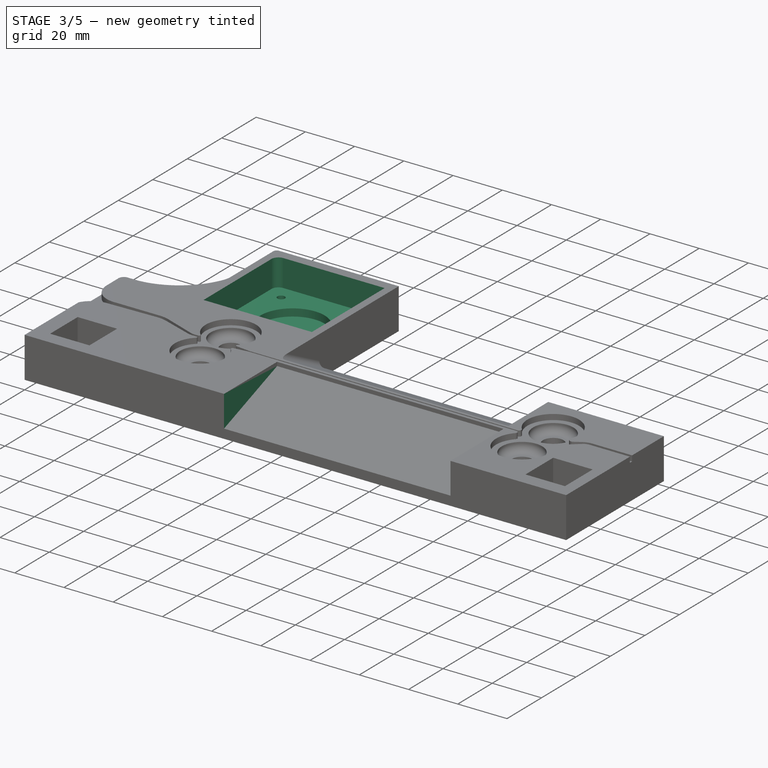
[diagram: stage 3 of 5 — iso view after this stage's code; geometry added in this stage tinted green]
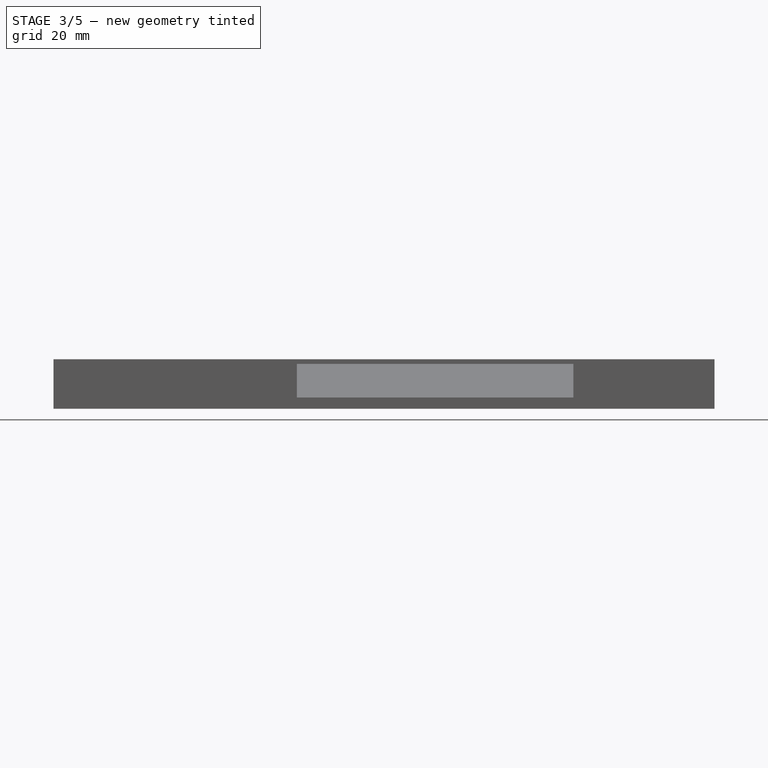
[diagram: stage 3 of 5 — front view after this stage's code; geometry added in this stage tinted green]
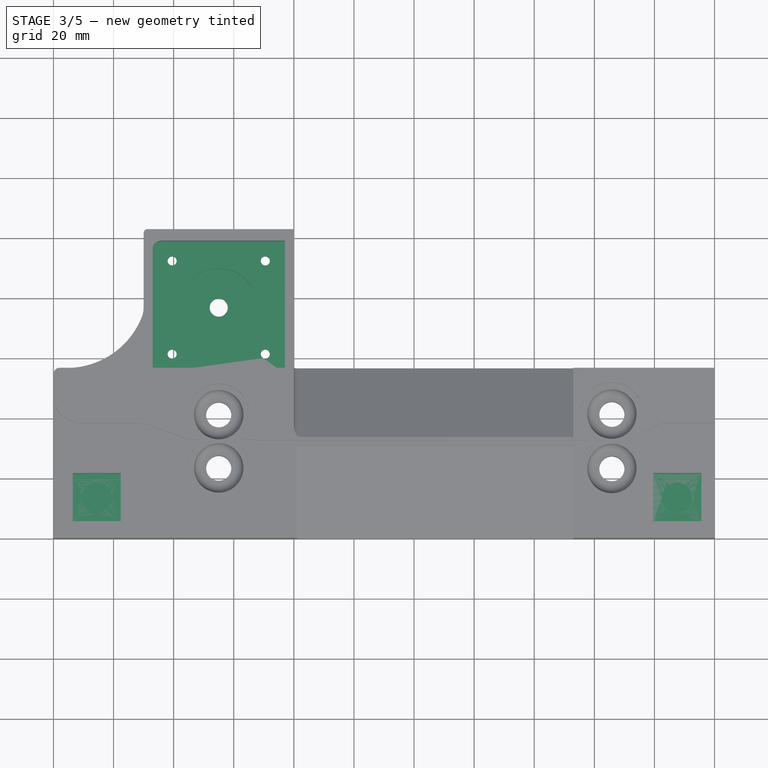
[diagram: stage 3 of 5 — top view after this stage's code; geometry added in this stage tinted green]
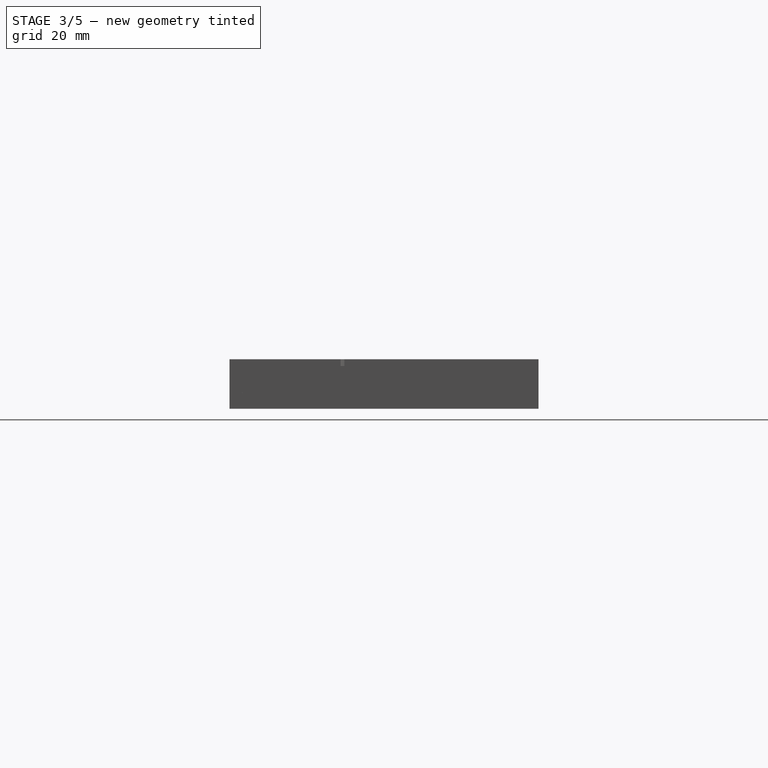
[diagram: stage 3 of 5 — right view after this stage's code; geometry added in this stage tinted green]
FEATURE [Sketcher::SketchObject] Sketch010  label="motorshafthole"
  MapMode = 5
  Placement = pos=(0,0,2.5) rot=(0,0,1;0rad)
  sketch-geometry (1):
    g0: Circle CenterX=55 CenterY=76.93 CenterZ=0 NormalX=0 NormalY=0 NormalZ=1 AngleXU=0 Radius=3
  constraints (3):
    c: Radius(g0) = 3
    c: DistanceY(g-1,g0) = 76.93
    c: DistanceX(g-1,g0) = 55
FEATURE [Sketcher::SketchObject] Sketch003  label="2ndhole4roller"
  AttachmentOffset = pos=(0,0,-1.75) rot=(0,0,1;0rad)
  ExternalGeometry = -> [Sketch009]
  MapMode = 5
  Placement = pos=(0,0,14.25) rot=(0,0,1;0rad)
  expr: Constraints[2] = Spreadsheet.SecondpocetRadiusRoller
  expr: Constraints[0] = Spreadsheet.SecondpocetRadiusRoller
  expr: Constraints[1] = Spreadsheet.SecondpocetRadiusRoller
  sketch-geometry (4):
    g0: Circle CenterX=185.83 CenterY=41.3 CenterZ=0 NormalX=0 NormalY=0 NormalZ=1 AngleXU=0 Radius=8.2
    g1: Circle CenterX=55 CenterY=23.38 CenterZ=0 NormalX=0 NormalY=0 NormalZ=1 AngleXU=0 Radius=8.2
    g2: Circle CenterX=55 CenterY=41.13 CenterZ=0 NormalX=0 NormalY=0 NormalZ=1 AngleXU=0 Radius=8.2
    g3: Circle CenterX=185.83 CenterY=23.2 CenterZ=0 NormalX=0 NormalY=0 NormalZ=1 AngleXU=0 Radius=8.2
  constraints (12):
    c: Radius(g0) = 8.2
    c: Radius(g2) = 8.2
    c: Radius(g1) = 8.2
    c: Radius(g3) = 8.2
    c: Vertical(g1,g2)
    c: Distance(g1,g2) = 17.75
    c: Distance(g3,g0) = 18.1
    c: DistanceY(g-1,g2) = 41.13
    c: Distance(g2,g0) = 130.83
    c: Vertical(g3,g0)
    c: DistanceY(g-1,g0) = 41.3
    c: DistanceX(g-1,g2) = 55
FEATURE [PartDesign::Pocket] Pocket001  label="2ndHole4roller"
  BaseFeature = -> Pocket
  Length = 3.6
  Length2 = 100
  Profile = -> Sketch003
  Refine = true
  Type = 0
FEATURE [Sketcher::SketchObject] Sketch007  label="3rdhole4roller"
  MapMode = 5
  Placement = pos=(0,0,10.65) rot=(0,0,1;0rad)
  sketch-geometry (4):
    g0: Circle CenterX=55 CenterY=41.13 CenterZ=0 NormalX=0 NormalY=0 NormalZ=1 AngleXU=0 Radius=4.18
    g1: Circle CenterX=55 CenterY=23.38 CenterZ=0 NormalX=0 NormalY=0 NormalZ=1 AngleXU=0 Radius=4.18
    g2: Circle CenterX=185.83 CenterY=41.3 CenterZ=0 NormalX=0 NormalY=0 NormalZ=1 AngleXU=0 Radius=4.18
    g3: Circle CenterX=185.83 CenterY=23.2 CenterZ=0 NormalX=0 NormalY=0 NormalZ=1 AngleXU=0 Radius=4.18
  constraints (12):
    c: Radius(g3) = 4.18
    c: Radius(g2) = 4.18
    c: Radius(g0) = 4.18
    c: Radius(g1) = 4.18
    c: Vertical(g1,g0)
    c: Vertical(g3,g2)
    c: DistanceX(g1) = 55
    c: DistanceY(g0) = 41.13
    c: DistanceY(g1,g0) = 17.75
    c: DistanceY(g3,g2) = 18.1
    c: Distance(g2,g0) = 130.83
    c: DistanceY(g-1,g2) = 41.3
FEATURE [Sketcher::SketchObject] Sketch014  label="topangularcut"
  AttachmentOffset = pos=(0,0,-52) rot=(0,0,1;0rad)
  MapMode = 5
  Placement = pos=(173,0,0) rot=(0.57735,0.57735,0.57735;2.0944rad)
  sketch-geometry (4):
    g0: LineSegment StartX=60 StartY=2.87191 StartZ=0 EndX=60.0146 EndY=16.5007 EndZ=0
    g1: LineSegment StartX=60.0146 StartY=16.5007 StartZ=0 EndX=33.1057 EndY=17.0469 EndZ=0
    g2: LineSegment StartX=33.1057 StartY=16.7896 StartZ=0 EndX=33.1057 EndY=17.0469 EndZ=0
    g3: LineSegment StartX=60 StartY=2.87191 StartZ=0 EndX=33.1057 EndY=16.7896 EndZ=0
  constraints (10):
    c: Coincident(g0,g1)
    c: DistanceX(g0) = 60.0146
    c: DistanceY(g0) = 16.5007
    c: DistanceX(g0) = 60
    c: DistanceY(g0) = 2.87191
    c: Vertical(g2)
    c: Coincident(g1,g2)
    c: Coincident(g3,g0)
    c: Coincident(g3,g2)
    c: Angle(g0,g3) = 1.09432
FEATURE [Sketcher::SketchObject] Sketch027  label="sensoropenning"
  AttachmentOffset = pos=(0,0,-47.63) rot=(0,0,1;0rad)
  MapMode = 5
  Placement = pos=(0,47.63,1.06e-14) rot=(1,0,0;1.5708rad)
  Support = -> [XZ_Plane]
  expr: .AttachmentOffset.Base.z = -50.6 + 2.97
  sketch-geometry (6):
    g0: LineSegment StartX=39.01 StartY=17.3 StartZ=0 EndX=33.26 EndY=17.3 EndZ=0
    g1: LineSegment StartX=33.26 StartY=17.3 StartZ=0 EndX=33.26 EndY=21 EndZ=0
    g2: GeomPoint X=41 Y=21 Z=0
    g3: LineSegment StartX=33.26 StartY=21 StartZ=0 EndX=39.01 EndY=21 EndZ=0
    g4: Circle CenterX=41 CenterY=21 CenterZ=0 NormalX=0 NormalY=0 NormalZ=1 AngleXU=0 Radius=1.5
    g5: LineSegment StartX=39.01 StartY=21 StartZ=0 EndX=39.01 EndY=17.3 EndZ=0
  constraints (16):
    c: Coincident(g0,g1)
    c: Horizontal(g0)
    c: Vertical(g1)
    c: DistanceY(g1,g1) = 3.7
    c: DistanceX(g1) = 33.26
    c: Coincident(g3,g1)
    c: Horizontal(g3)
    c: DistanceX(g3,g3) = 5.75
    c: Coincident(g4,g2)
    c: Radius(g4) = 1.5
    c: DistanceY(g-1,g1) = 21
    c: Coincident(g5,g3)
    c: Vertical(g5)
    c: Coincident(g0,g5)
    c: DistanceX(g3,g2) = 1.99
    c: DistanceY(g3,g2) = 2e-06
FEATURE [Sketcher::SketchObject] Sketch006  label="Spacerpocket"
  MapMode = 5
  Placement = pos=(0,0,16.5) rot=(0,0,1;0rad)
  sketch-geometry (8):
    g0: LineSegment StartX=6.41 StartY=5.63 StartZ=0 EndX=22.41 EndY=5.63 EndZ=0
    g1: LineSegment StartX=22.41 StartY=5.63 StartZ=0 EndX=22.41 EndY=21.63 EndZ=0
    g2: LineSegment StartX=22.41 StartY=21.63 StartZ=0 EndX=6.41 EndY=21.63 EndZ=0
    g3: LineSegment StartX=6.41 StartY=21.63 StartZ=0 EndX=6.41 EndY=5.63 EndZ=0
    g4: LineSegment StartX=199.57 StartY=5.58 StartZ=0 EndX=215.62 EndY=5.58 EndZ=0
    g5: LineSegment StartX=215.62 StartY=5.58 StartZ=0 EndX=215.62 EndY=21.63 EndZ=0
    g6: LineSegment StartX=215.62 StartY=21.63 StartZ=0 EndX=199.57 EndY=21.63 EndZ=0
    g7: LineSegment StartX=199.57 StartY=21.63 StartZ=0 EndX=199.57 EndY=5.58 EndZ=0
  constraints (24):
    c: Coincident(g0,g1)
    c: Coincident(g1,g2)
    c: Coincident(g2,g3)
    c: Coincident(g3,g0)
    c: Horizontal(g0)
    c: Horizontal(g2)
    c: Vertical(g1)
    c: Vertical(g3)
    c: Coincident(g4,g5)
    c: Coincident(g5,g6)
    c: Coincident(g6,g7)
    c: Coincident(g7,g4)
    c: Horizontal(g4)
    c: Horizontal(g6)
    c: Vertical(g5)
    c: Vertical(g7)
    c: DistanceX(g2,g2) = 16
    c: DistanceX(g6,g6) = 16.05
    c: Equal(g2,g1)
    c: Equal(g6,g7)
    c: Horizontal(g6,g1)
    c: DistanceX(g6) = 199.57
    c: DistanceX(g2) = 6.41
    c: DistanceY(g2) = 21.63
FEATURE [PartDesign::Pocket] Pocket002  label="SpacerPocket"
  BaseFeature = -> Pocket001
  Length = 12
  Length2 = 100
  Profile = -> Sketch006
  Refine = true
  Type = 0
FEATURE [PartDesign::Pocket] Pocket003  label="3rdHole4roller"
  BaseFeature = -> Pocket002
  Length = 5
  Length2 = 100
  Profile = -> Sketch007
  Refine = true
  Type = 1
FEATURE [PartDesign::Pocket] Pocket004  label="MotorSquarePocket"
  BaseFeature = -> Pocket003
  Length = 11
  Length2 = 100
  Profile = -> Sketch008
  Refine = true
  Type = 0
FEATURE [Sketcher::SketchObject] Sketch021  label="rubbergrippocket"
  MapMode = 5
  Placement = pos=(0,0,0) rot=(1,0,0;1.5708rad)
  Support = -> [XZ_Plane]
  sketch-geometry (2):
    g0: Circle CenterX=22 CenterY=8.25 CenterZ=0 NormalX=0 NormalY=0 NormalZ=1 AngleXU=0 Radius=5.7
    g1: Circle CenterX=200 CenterY=8.25 CenterZ=0 NormalX=0 NormalY=0 NormalZ=1 AngleXU=0 Radius=5.7
  constraints (6):
    c: Radius(g0) = 5.7
    c: DistanceX(g-1,g0) = 22
    c: DistanceY(g-1,g0) = 8.25
    c: Radius(g1) = 5.7
    c: DistanceX(g-1,g1) = 200
    c: DistanceY(g-1,g1) = 8.25
FEATURE [Sketcher::SketchObject] Sketch022  label="sensormain"
  AttachmentOffset = pos=(0,0,16.5) rot=(0,0,1;0rad)
  MapMode = 5
  Placement = pos=(0,0,16.5) rot=(0,0,1;0rad)
  Support = -> [XY_Plane]
  sketch-geometry (13):
    g0: LineSegment StartX=30 StartY=79.0291 StartZ=0 EndX=30 EndY=76.83 EndZ=0
    g1: ArcOfCircle CenterX=9.69026 CenterY=44.9285 CenterZ=0 NormalX=0 NormalY=0 NormalZ=1 AngleXU=0 Radius=6.68482 StartAngle=4.66895 EndAngle=6.23029
    g2: LineSegment StartX=33 StartY=54.93 StartZ=0 EndX=55 EndY=54.9251 EndZ=0
    g3: LineSegment StartX=55 StartY=54.9251 StartZ=0 EndX=55 EndY=51.3079 EndZ=0
    g4: LineSegment StartX=45.3492 StartY=44.5751 StartZ=0 EndX=16.3657 EndY=44.5751 EndZ=0
    g5: LineSegment StartX=33 StartY=54.93 StartZ=0 EndX=33 EndY=79.0291 EndZ=0
    g6: LineSegment StartX=33 StartY=79.0291 StartZ=0 EndX=30 EndY=79.0291 EndZ=0
    g7: ArcOfCircle CenterX=54.9065 CenterY=41.1588 CenterZ=0 NormalX=0 NormalY=0 NormalZ=1 AngleXU=0 Radius=10.1495 StartAngle=1.56158 EndAngle=2.79829
    g8: ArcOfCircle CenterX=9.50883 CenterY=47.7621 CenterZ=0 NormalX=0 NormalY=0 NormalZ=1 AngleXU=0 Radius=9.51273 StartAngle=3.1702 EndAngle=4.70095
    g9: LineSegment StartX=0 StartY=47.49 StartZ=0 EndX=0 EndY=54.55 EndZ=0
    g10: ArcOfCircle CenterX=20.3998 CenterY=76.8837 CenterZ=0 NormalX=0 NormalY=0 NormalZ=1 AngleXU=0 Radius=9.60039 StartAngle=5.89614 EndAngle=6.27759
    g11: ArcOfCircle CenterX=2.15726 CenterY=54.5383 CenterZ=0 NormalX=0 NormalY=0 NormalZ=1 AngleXU=0 Radius=2.15729 StartAngle=1.49897 EndAngle=3.13617
    g12: ArcOfCircle CenterX=4.37019 CenterY=83.5858 CenterZ=0 NormalX=0 NormalY=0 NormalZ=1 AngleXU=0 Radius=26.9744 StartAngle=4.63602 EndAngle=5.89036
  constraints (28):
    c: Coincident(g3,g2)
    c: Vertical(g3)
    c: DistanceY(g4,g2) = 10.35
    c: Coincident(g4,g1)
    c: Horizontal(g4)
    c: Coincident(g5,g2)
    c: Coincident(g6,g5)
    c: Coincident(g6,g0)
    c: Horizontal(g6)
    c: Coincident(g7,g4)
    c: Coincident(g7,g3)
    c: Coincident(g8,g1)
    c: Coincident(g9,g8)
    c: Vertical(g9)
    c: Vertical(g0)
    c: DistanceY(g0) = 76.83
    c: DistanceX(g0) = 30
    c: Coincident(g10,g0)
    c: DistanceY(g10) = 73.26
    c: DistanceX(g10) = 29.29
    c: DistanceX(g9) = 0
    c: DistanceY(g9) = 54.55
    c: Coincident(g11,g9)
    c: Coincident(g12,g11)
    c: Coincident(g12,g10)
    c: DistanceY(g1) = 38.25
    c: DistanceX(g1) = 9.4
    c: DistanceY(g8) = 47.49
FEATURE [PartDesign::Pocket] Pocket005  label="MotorCircularPocket"
  BaseFeature = -> Pocket004
  Length = 3
  Length2 = 100
  Profile = -> Sketch009
  Refine = true
  Type = 0
FEATURE [PartDesign::Pocket] Pocket006  label="MotorShaftHole"
  BaseFeature = -> Pocket005
  Length = 5
  Length2 = 100
  Profile = -> Sketch010
  Refine = true
  Type = 1
FEATURE [PartDesign::Pocket] Pocket007  label="MotorBindingHole"
  BaseFeature = -> Pocket006
  Length = 5
  Length2 = 100
  Profile = -> Sketch011
  Refine = true
  Type = 1
FEATURE [Sketcher::SketchObject] Sketch012  label="motorbackpocket"
  ExternalGeometry = -> [Pocket007]
  MapMode = 5
  Placement = pos=(0,0,0) rot=(1,0,0;3.14159rad)
  sketch-geometry (4):
    g0: Circle CenterX=39.5 CenterY=-61.43 CenterZ=0 NormalX=0 NormalY=0 NormalZ=1 AngleXU=0 Radius=3
    g1: Circle CenterX=39.5 CenterY=-92.43 CenterZ=0 NormalX=0 NormalY=0 NormalZ=1 AngleXU=0 Radius=3
    g2: Circle CenterX=70.5 CenterY=-92.43 CenterZ=0 NormalX=0 NormalY=0 NormalZ=1 AngleXU=0 Radius=3
    g3: Circle CenterX=70.5 CenterY=-61.43 CenterZ=0 NormalX=0 NormalY=0 NormalZ=1 AngleXU=0 Radius=3
  constraints (8):
    c: Radius(g1) = 3
    c: Radius(g2) = 3
    c: Radius(g0) = 3
    c: Radius(g3) = 3
    c: Coincident(g0,g-4)
    c: Coincident(g1,g-3)
    c: Coincident(g2,g-6)
    c: Coincident(g3,g-5)
FEATURE [PartDesign::Pocket] Pocket008  label="MotorBackPocket"
  BaseFeature = -> Pocket007
  Length = 2
  Length2 = 100
  Profile = -> Sketch012
  Refine = true
  Type = 0
FEATURE [PartDesign::Pocket] Pocket009  label="BottomAngularCut"
  BaseFeature = -> Pocket008
  Length = 92
  Length2 = 100
  Profile = -> Sketch013
  Refine = true
  Type = 0
FEATURE [PartDesign::Pocket] Pocket010  label="TopAngularCut"
  BaseFeature = -> Pocket009
  Length = 93
  Length2 = 100
  Profile = -> Sketch014
  Refine = true
  Type = 0
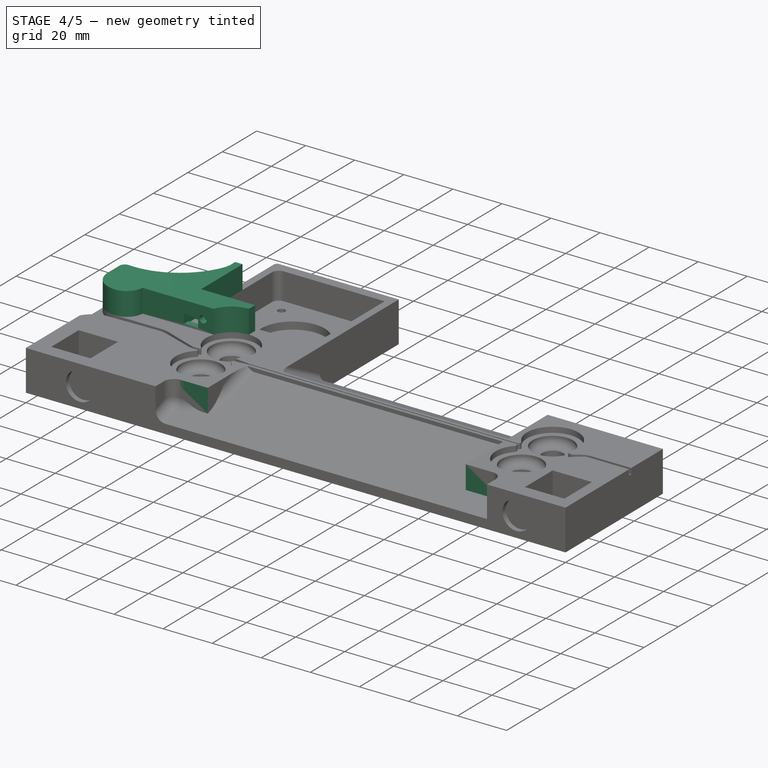
[diagram: stage 4 of 5 — iso view after this stage's code; geometry added in this stage tinted green]
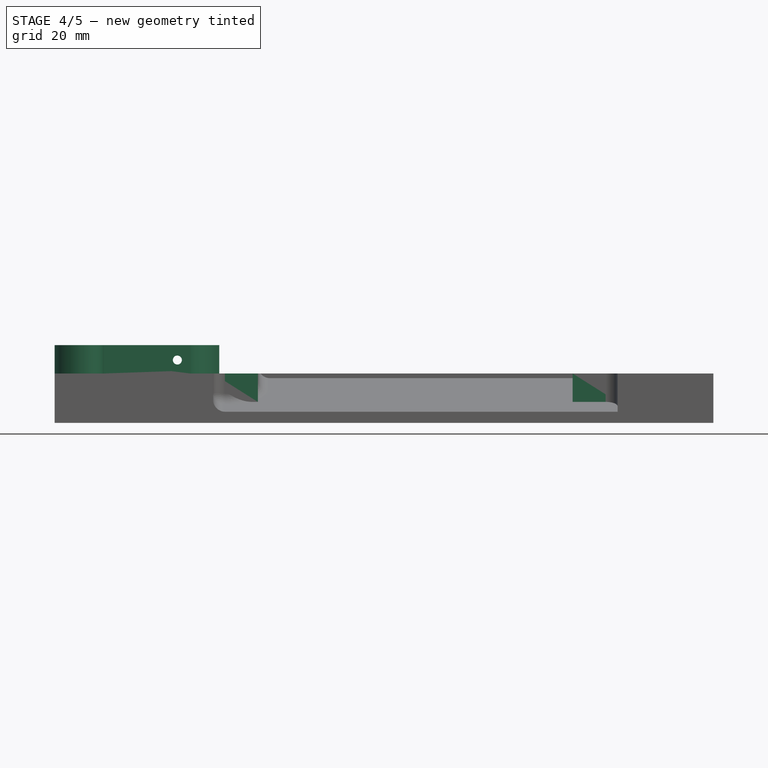
[diagram: stage 4 of 5 — front view after this stage's code; geometry added in this stage tinted green]
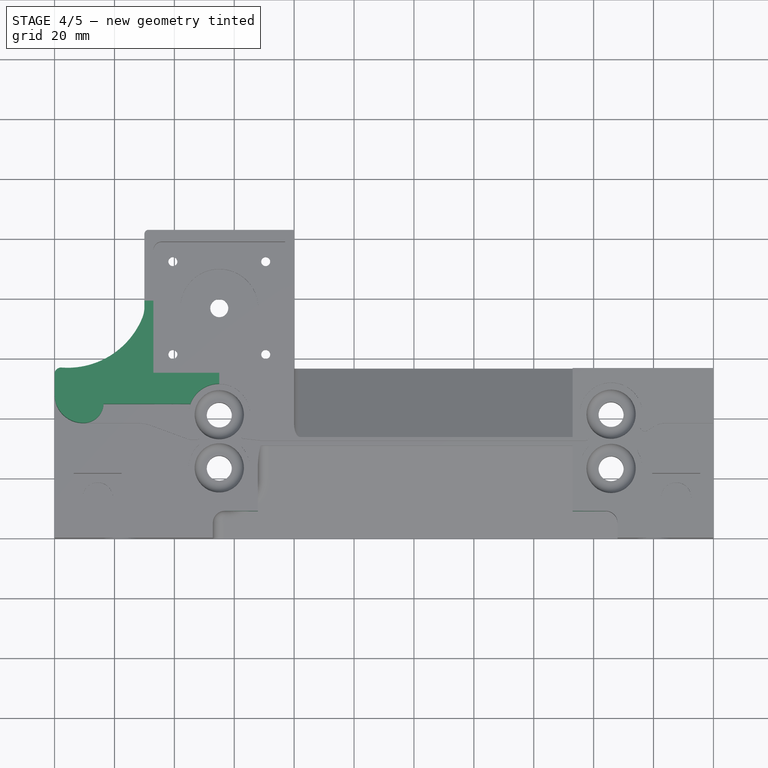
[diagram: stage 4 of 5 — top view after this stage's code; geometry added in this stage tinted green]
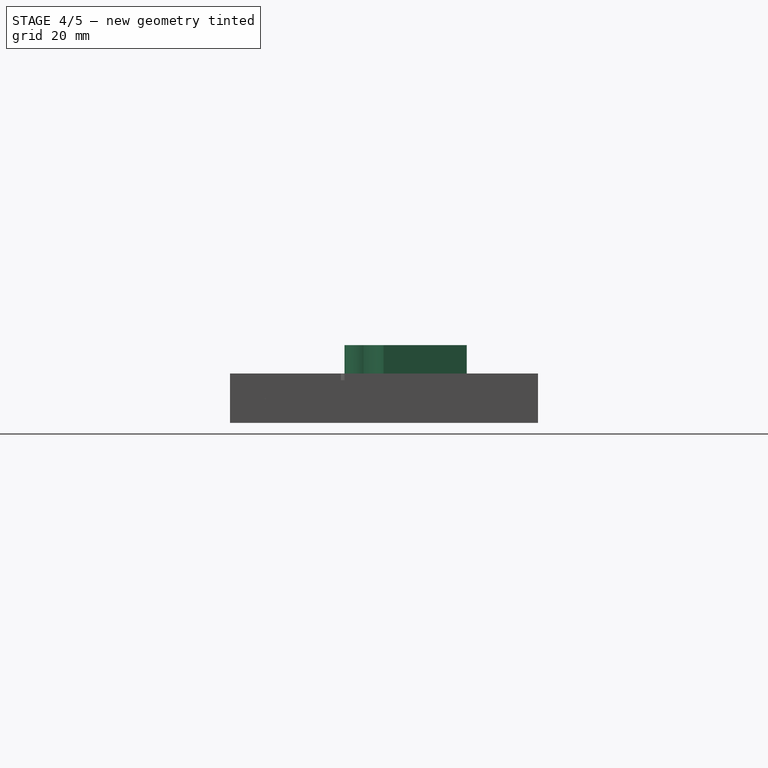
[diagram: stage 4 of 5 — right view after this stage's code; geometry added in this stage tinted green]
FEATURE [PartDesign::Pocket] Pocket011  label="BottomAngularCut2"
  BaseFeature = -> Pocket010
  Length = 15
  Length2 = 100
  Profile = -> Sketch015
  Refine = true
  Type = 0
FEATURE [Sketcher::SketchObject] Sketch017  label="bottomangularcut3"
  AttachmentOffset = pos=(0,0,67.87) rot=(0,0,1;0rad)
  MapMode = 5
  Placement = pos=(67.87,-1.51e-14,1.51e-14) rot=(0.57735,0.57735,0.57735;2.0944rad)
  Support = -> [YZ_Plane]
  expr: .AttachmentOffset.Base.z = 71 - 3.13
  sketch-geometry (4):
    g0: LineSegment StartX=0 StartY=3.75 StartZ=0 EndX=0 EndY=16.7175 EndZ=0
    g1: LineSegment StartX=0 StartY=16.7175 StartZ=0 EndX=9 EndY=16.7175 EndZ=0
    g2: LineSegment StartX=9 StartY=16.7175 StartZ=0 EndX=9 EndY=7.02573 EndZ=0
    g3: LineSegment StartX=9 StartY=7.02573 StartZ=0 EndX=0 EndY=3.75 EndZ=0
  constraints (11):
    c: Coincident(g0,g1)
    c: Coincident(g1,g2)
    c: Coincident(g2,g3)
    c: Coincident(g3,g0)
    c: Angle(g3,g0) = 1.22173
    c: Horizontal(g1,g0)
    c: PointOnObject(g0,g-2)
    c: PointOnObject(g0,g-2)
    c: Parallel(g0,g2)
    c: Distance(g-1,g0) = 3.75
    c: DistanceX(g1,g1) = 9
FEATURE [PartDesign::Pocket] Pocket012  label="BottomAngularCut3"
  BaseFeature = -> Pocket011
  Length = 15
  Length2 = 100
  Profile = -> Sketch017
  Refine = true
  Type = 0
FEATURE [Sketcher::SketchObject] Sketch018  label="magnetpocket"
  AttachmentOffset = pos=(0,0,4.5) rot=(0,0,1;0rad)
  MapMode = 5
  Placement = pos=(0,0,4.5) rot=(0,0,1;0rad)
  Support = -> [XY_Plane]
  sketch-geometry (2):
    g0: Circle CenterX=14.4086 CenterY=13.6322 CenterZ=0 NormalX=0 NormalY=0 NormalZ=1 AngleXU=0 Radius=5.05
    g1: Circle CenterX=207.57 CenterY=13.6322 CenterZ=0 NormalX=0 NormalY=0 NormalZ=1 AngleXU=0 Radius=5.05
  constraints (3):
    c: Radius(g0) = 5.05
    c: Radius(g1) = 5.05
    c: DistanceX(g1) = 207.57
FEATURE [PartDesign::Pocket] Pocket013  label="MagnetPocket"
  BaseFeature = -> Pocket012
  Length = 2.2
  Length2 = 100
  Profile = -> Sketch018
  Refine = true
  Type = 0
FEATURE [PartDesign::Pocket] Pocket015  label="BottomAngularCut4"
  BaseFeature = -> Pocket013
  Length = 13.13
  Length2 = 100
  Profile = -> Sketch020
  Refine = true
  Type = 0
FEATURE [PartDesign::Pocket] Pocket016  label="RubberGripPocket"
  BaseFeature = -> Pocket015
  Length = 2
  Length2 = 100
  Profile = -> Sketch021
  Refine = true
  Type = 0
FEATURE [PartDesign::Pad] Pad001  label="SensorMain"
  BaseFeature = -> Pocket016
  Direction = (1,1,1)
  Length = 9.5
  Length2 = 100
  Profile = -> Sketch022
  Refine = true
  Type = 0
FEATURE [Sketcher::SketchObject] Sketch023  label="sensortunnel"
  AttachmentOffset = pos=(0,-2.75,23.75) rot=(0,0,1;0rad)
  ExternalGeometry = -> [Pad001]
  MapMode = 5
  Placement = pos=(0,-2.75,23.75) rot=(0,0,1;0rad)
  Support = -> [XY_Plane]
  expr: Constraints[10] = 60 - 5.97
  sketch-geometry (4):
    g0: LineSegment StartX=43.85 StartY=54.03 StartZ=0 EndX=33 EndY=54.03 EndZ=0
    g1: LineSegment StartX=33 StartY=54.03 StartZ=0 EndX=33 EndY=49.93 EndZ=0
    g2: LineSegment StartX=33 StartY=49.93 StartZ=0 EndX=43.85 EndY=49.93 EndZ=0
    g3: LineSegment StartX=43.85 StartY=49.93 StartZ=0 EndX=43.85 EndY=54.03 EndZ=0
  constraints (12):
    c: Coincident(g0,g1)
    c: Coincident(g1,g2)
    c: Coincident(g2,g3)
    c: Coincident(g3,g0)
    c: Horizontal(g0)
    c: Horizontal(g2)
    c: Vertical(g1)
    c: Vertical(g3)
    c: DistanceX(g0,g0) = 10.85
    c: DistanceY(g1,g1) = 4.1
    c: DistanceY(g-1,g0) = 54.03
    c: DistanceX(g-1,g0) = 33
FEATURE [PartDesign::Pocket] Pocket017  label="SensorTunnel"
  BaseFeature = -> Pad001
  Length = 9
  Length2 = 100
  Profile = -> Sketch023
  Refine = true
  Type = 1
FEATURE [PartDesign::Pocket] Pocket018  label="SensorOpenning"
  BaseFeature = -> Pocket017
  Length = 4
  Length2 = 100
  Profile = -> Sketch027
  Refine = true
  Reversed = true
  Type = 0
FEATURE [Sketcher::SketchObject] Sketch028  label="sensorbindinghole"
  AttachmentOffset = pos=(1,-1,-55.13) rot=(0,0,1;0rad)
  MapMode = 5
  Placement = pos=(1,55.13,-1) rot=(1,0,0;1.5708rad)
  Support = -> [XZ_Plane]
  expr: .AttachmentOffset.Base.z = -61.1 + 5.97
  sketch-geometry (1):
    g0: Circle CenterX=40 CenterY=22 CenterZ=0 NormalX=0 NormalY=0 NormalZ=1 AngleXU=0 Radius=3
  constraints (3):
    c: DistanceX(g0) = 40
    c: DistanceY(g0) = 22
    c: Radius(g0) = 3
FEATURE [PartDesign::Pocket] Pocket019  label="SensorBindingHole"
  BaseFeature = -> Pocket018
  Length = 2.9
  Length2 = 100
  Profile = -> Sketch028
  Refine = true
  Reversed = true
  Type = 0
FEATURE [PartDesign::Pocket] Pocket020  label="SensorBindingHole2"
  BaseFeature = -> Pocket019
  Length = 5
  Length2 = 100
  Profile = -> Sketch029
  Refine = true
  Reversed = true
  Type = 0
FEATURE [PartDesign::Pocket] Pocket021  label="BrandName"
  BaseFeature = -> Pocket020
  Length = 2.5
  Length2 = 100
  Profile = -> ShapeString
  Refine = true
  Reversed = true
  Type = 0
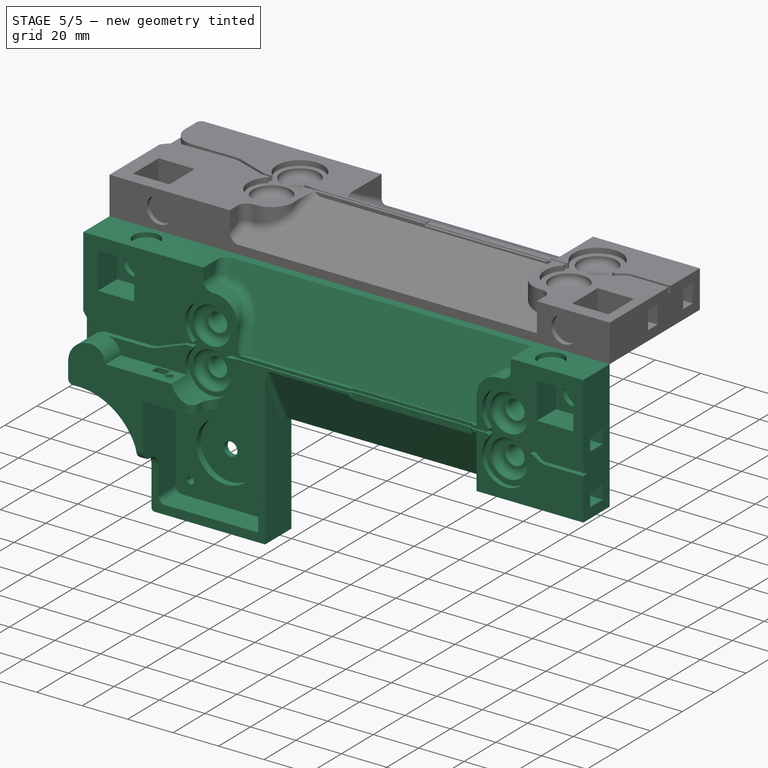
[diagram: stage 5 of 5 — iso view after this stage's code; geometry added in this stage tinted green]
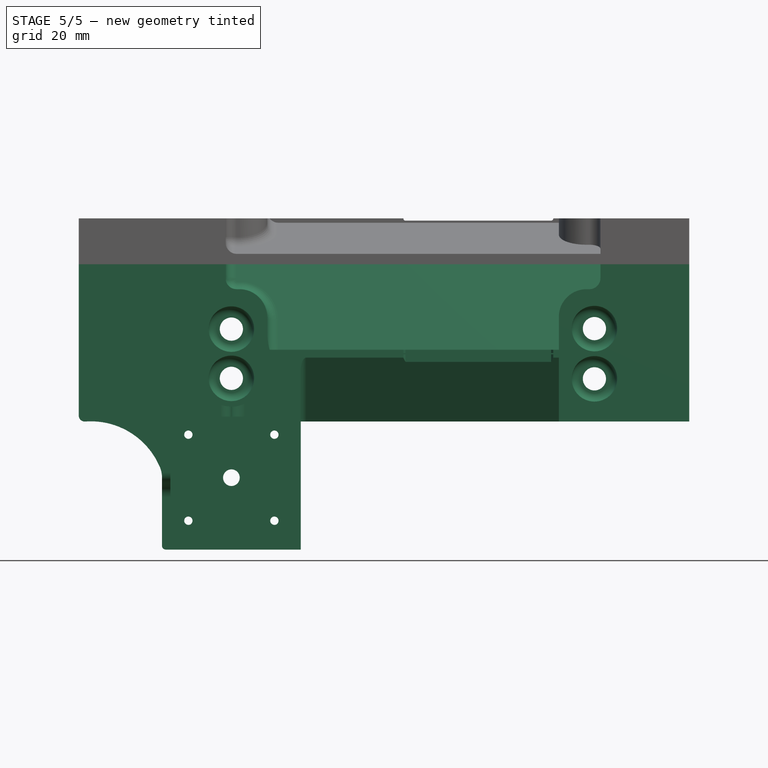
[diagram: stage 5 of 5 — front view after this stage's code; geometry added in this stage tinted green]
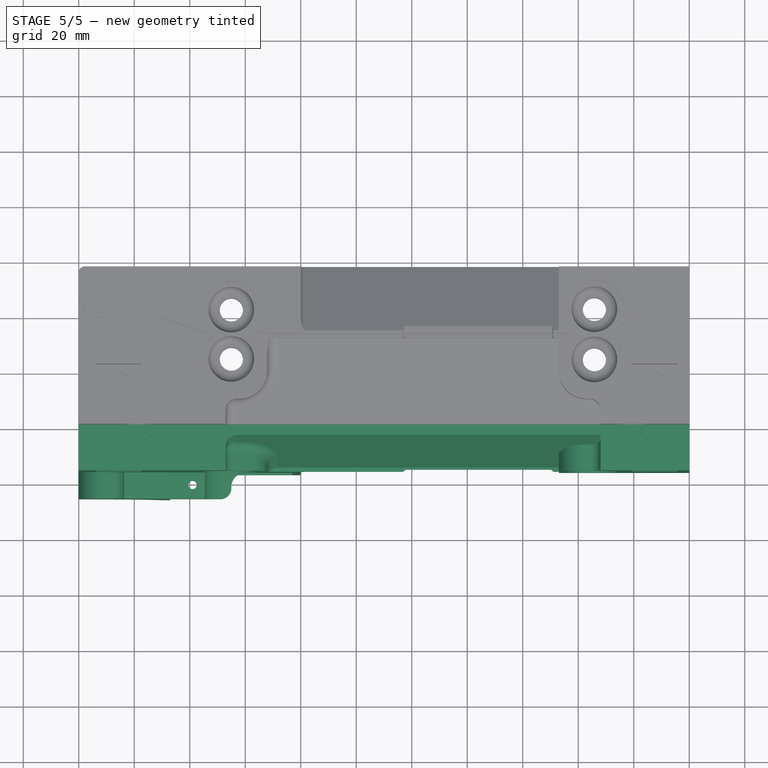
[diagram: stage 5 of 5 — top view after this stage's code; geometry added in this stage tinted green]
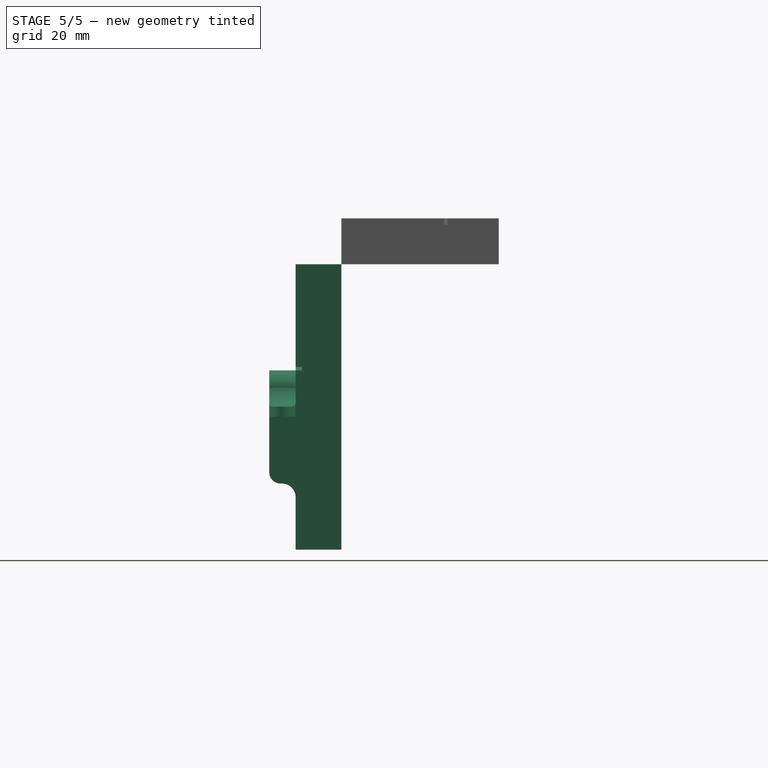
[diagram: stage 5 of 5 — right view after this stage's code; geometry added in this stage tinted green]
FEATURE [PartDesign::Pocket] Pocket022  label="FilmVerticalBorders"
  BaseFeature = -> Pocket021
  Length = 40
  Length2 = 100
  Profile = -> Sketch030
  Type = 0
FEATURE [Sketcher::SketchObject] Sketch033  label="filmcollectorpocket"
  AttachmentOffset = pos=(0,0,220) rot=(0,0,1;0rad)
  MapMode = 5
  Placement = pos=(220,-4.88e-14,4.88e-14) rot=(0.57735,0.57735,0.57735;2.0944rad)
  Support = -> [YZ_Plane]
  sketch-geometry (8):
    g0: LineSegment StartX=24.15 StartY=12.25 StartZ=0 EndX=30.15 EndY=12.25 EndZ=0
    g1: LineSegment StartX=30.15 StartY=4.25 StartZ=0 EndX=24.15 EndY=4.25 EndZ=0
    g2: LineSegment StartX=24.15 StartY=12.25 StartZ=0 EndX=24.15 EndY=4.25 EndZ=0
    g3: LineSegment StartX=30.15 StartY=4.25 StartZ=0 EndX=30.15 EndY=12.25 EndZ=0
    g4: LineSegment StartX=46.25 StartY=12.25 StartZ=0 EndX=52.25 EndY=12.25 EndZ=0
    g5: LineSegment StartX=52.25 StartY=12.25 StartZ=0 EndX=52.25 EndY=4.25 EndZ=0
    g6: LineSegment StartX=52.25 StartY=4.25 StartZ=0 EndX=46.25 EndY=4.25 EndZ=0
    g7: LineSegment StartX=46.25 StartY=4.25 StartZ=0 EndX=46.25 EndY=12.25 EndZ=0
  constraints (23):
    c: Horizontal(g0)
    c: Horizontal(g1)
    c: Coincident(g2,g0)
    c: Coincident(g2,g1)
    c: Vertical(g2)
    c: Coincident(g3,g1)
    c: Coincident(g3,g0)
    c: Vertical(g3)
    c: DistanceY(g3,g3) = 8
    c: DistanceX(g0,g0) = 6
    c: Horizontal(g4)
    c: Coincident(g4,g5)
    c: Vertical(g5)
    c: Coincident(g5,g6)
    c: Horizontal(g6)
    c: Coincident(g6,g7)
    c: Coincident(g7,g4)
    c: Vertical(g7)
    c: DistanceY(g5,g5) = 8
    c: DistanceX(g6,g6) = 6
    c: DistanceX(g1,g6) = 16.1
    c: Horizontal(g4,g0)
    c: DistanceX(g1) = 24.15
FEATURE [PartDesign::Pocket] Pocket024  label="FilmCollectorPocket"
  BaseFeature = -> Pocket022
  Length = 10
  Length2 = 100
  Profile = -> Sketch033
  Type = 0
FEATURE [PartDesign::Fillet] Fillet
  Base = -> Pocket024 [Face268,Face269,Face278,Face277]
  BaseFeature = -> Pocket024
  Radius = 3
  SupportTransform = false
FEATURE [PartDesign::Fillet] Fillet001
  Base = -> Fillet [Edge853,Edge789]
  BaseFeature = -> Fillet
  Radius = 10
  SupportTransform = false
FEATURE [PartDesign::Fillet] Fillet002
  Base = -> Fillet001 [Edge36,Edge177]
  BaseFeature = -> Fillet001
  Radius = 4
  SupportTransform = false
FEATURE [PartDesign::Fillet] Fillet003
  Base = -> Fillet002 [Edge32,Edge29,Edge25,Edge31,Edge34]
  BaseFeature = -> Fillet002
  Radius = 4
  SupportTransform = false
FEATURE [PartDesign::Fillet] Fillet004
  Base = -> Fillet003 [Edge465]
  BaseFeature = -> Fillet003
  Radius = 2
  SupportTransform = false
FEATURE [PartDesign::Fillet] Fillet005
  Base = -> Fillet004 [Edge546,Edge539]
  BaseFeature = -> Fillet004
  Radius = 5
  SupportTransform = false
FEATURE [PartDesign::Fillet] Fillet006
  Base = -> Fillet005 [Edge91,Edge82]
  BaseFeature = -> Fillet005
  Radius = 4
  SupportTransform = false
FEATURE [PartDesign::Chamfer] Chamfer
  Angle = 45
  Base = -> Fillet006 [Edge104,Edge902,Edge381,Edge918]
  BaseFeature = -> Fillet006
  ChamferType = 0
  FlipDirection = false
  Size = 0.75
  Size2 = 1
  SupportTransform = false
FEATURE [PartDesign::Body] Body  label="Stepper side"
  Group = -> [Sketch,Sketch003,Sketch006,Sketch007,Sketch008,Sketch009,Sketch010,Sketch011,Sketch012,Sketch013,Sketch014,Sketch015,Pad,Pocket,Pocket001,Pocket002,Pocket003,Pocket004,Pocket005,Pocket006,Pocket007,Pocket008,Pocket009,Pocket010,Pocket011,Sketch017,Pocket012,Sketch018,Pocket013,Sketch020,Pocket015,Sketch021,Pocket016,Sketch022,Pad001,Sketch023,Pocket017,Sketch027,Pocket018,Sketch028,Pocket019,+15 more]
  Origin = -> Origin
  Placement = pos=(0,0,0) rot=(1,0,0;1.5708rad)
  Tip = -> Chamfer
FEATURE [Part::Mirroring] Part__Mirroring  label="Stepper side (Mirror #1)"
  Base = (0,0,0)
  Normal = (0,0,1)
  Source = -> Body
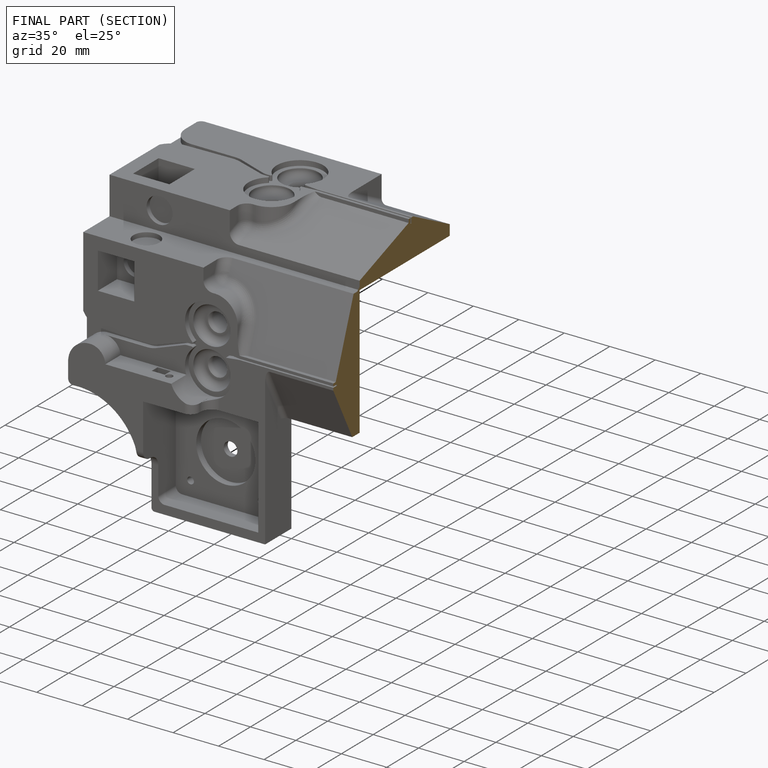
[diagram: finished part — half-section view (interior)]
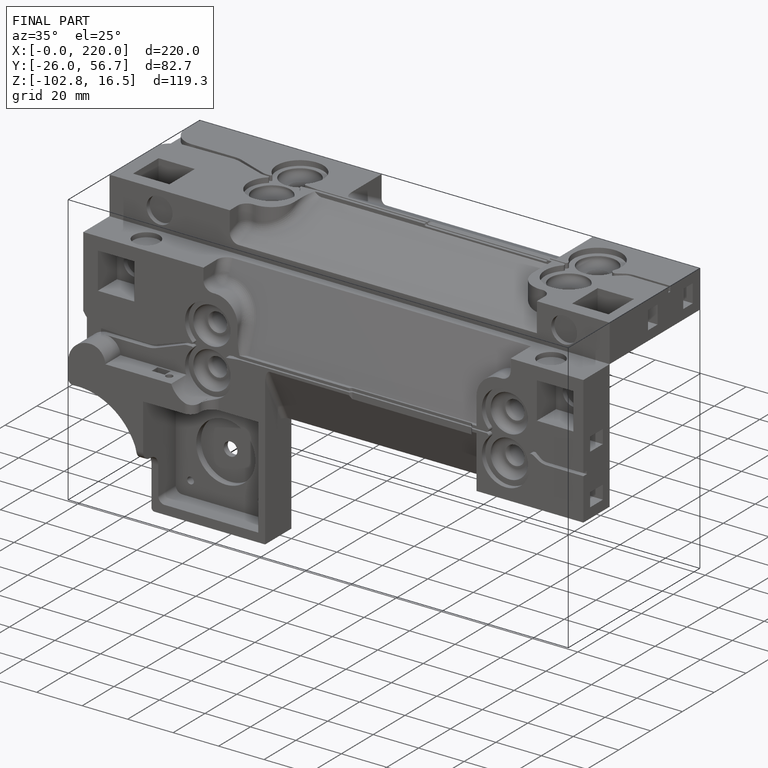
[diagram: finished part — iso view with bounding-box wireframe]
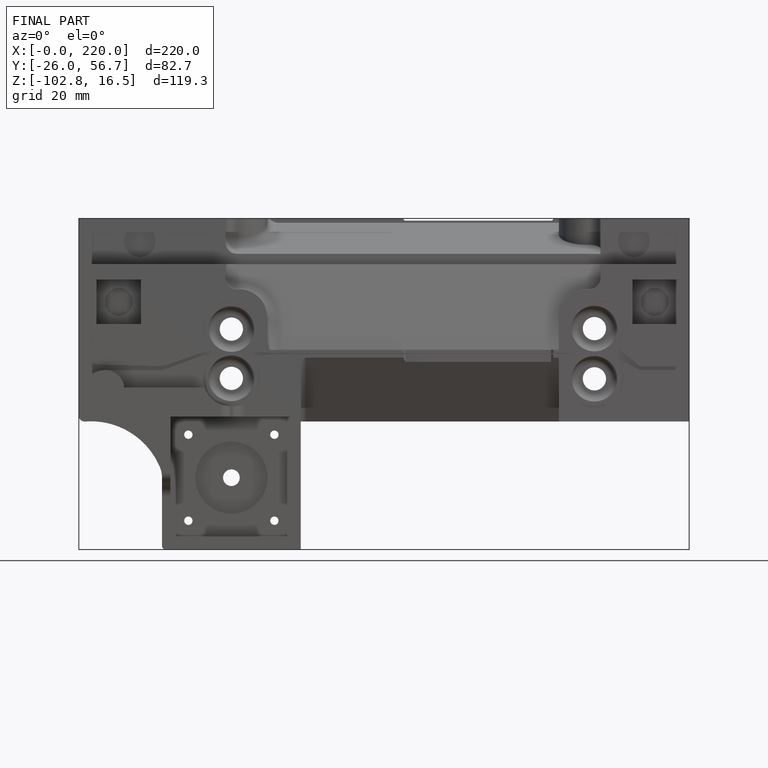
[diagram: finished part — front view with bounding-box wireframe]
